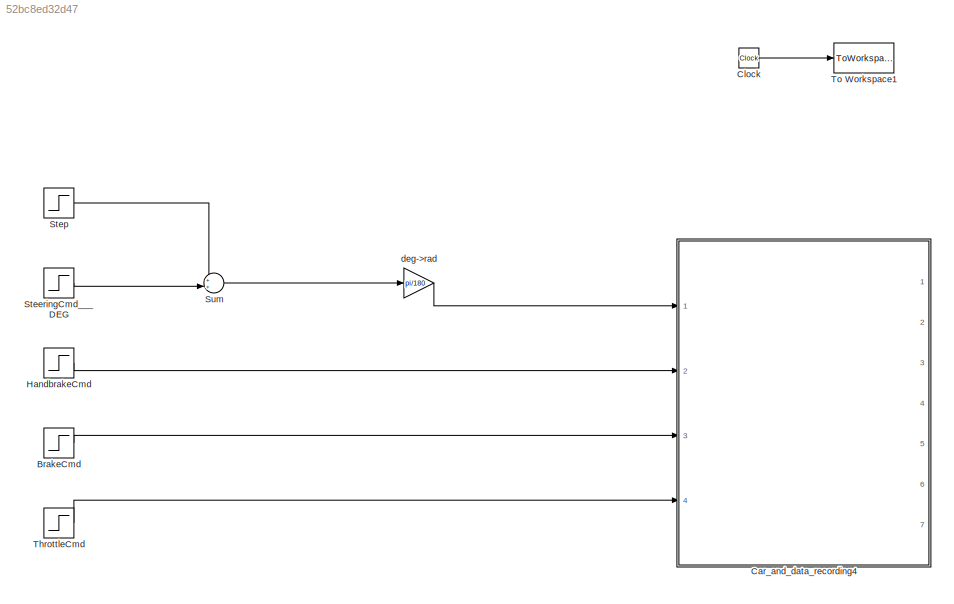
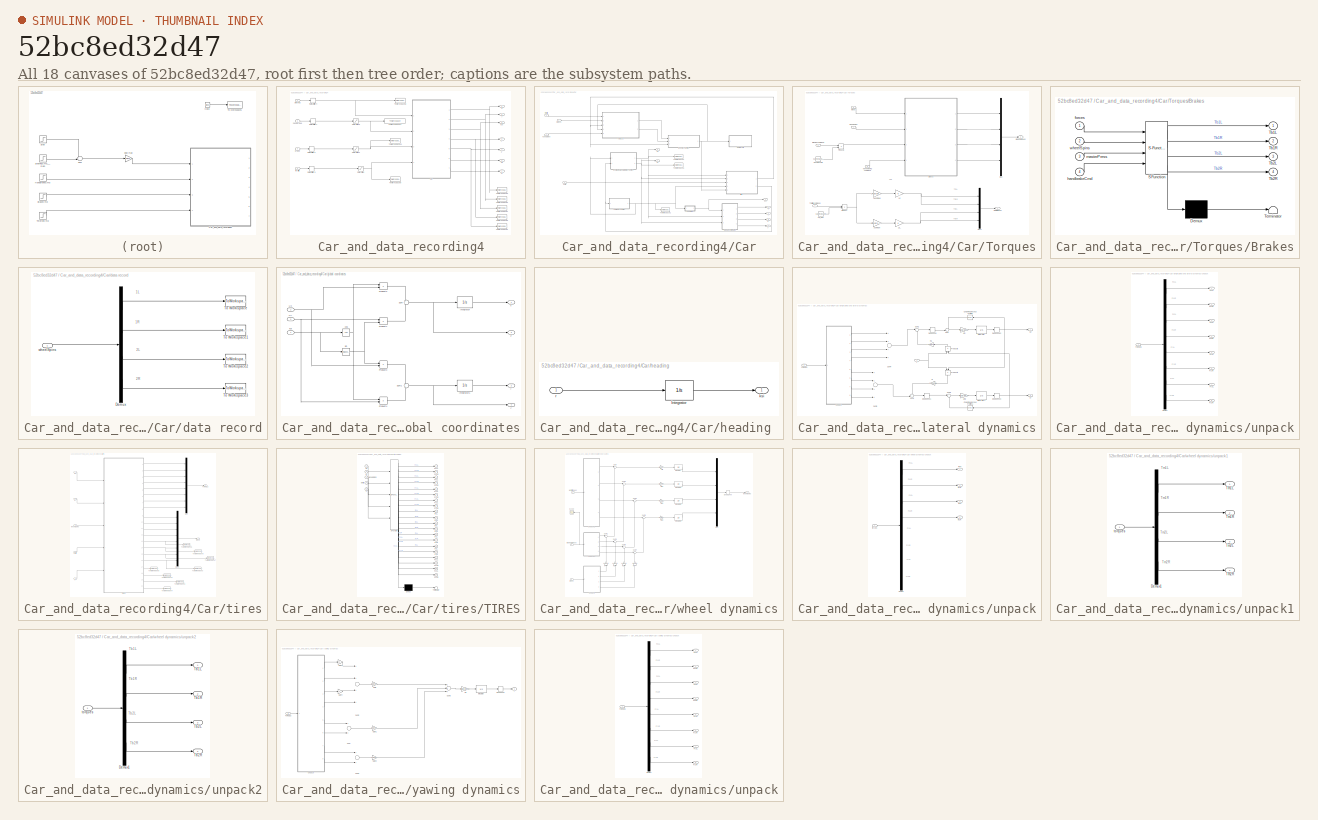
[diagram: thumbnail index - all 18 canvases of the model, root first then tree order]
MODEL slx_52bc8ed32d47
KIND model
CONFIG AbsTol = auto
CONFIG EnableMultiTasking = on
CONFIG FixedStep = 0.001
CONFIG MaxStep = auto
CONFIG MinStep = auto
CONFIG RelTol = 1e-3
CONFIG SampleTimeConstraint = Unconstrained
CONFIG Solver = ode4
CONFIG SolverName = ode4
CONFIG StartTime = 0.0
CONFIG StopTime = 10
BLOCK [Step] BrakeCmd
  After = 0.2
  SampleTime = 0
  Time = 2
BLOCK [SubSystem] Car_and_data_recording4
  Ports = [4, 7]
  RequestExecContextInheritance = off
  Variant = off
BLOCK [SubSystem] Car_and_data_recording4/Car
  Ports = [4, 7]
  RequestExecContextInheritance = off
  Variant = off
BLOCK [ToWorkspace] Car_and_data_recording4/Car/To Workspace1
  FixptAsFi = on
  MaxDataPoints = inf
  Ports = [1]
  SampleTime = -1
  Save2DSignal = 3-D array (concatenate along third dimension)
  VariableName = Ux
BLOCK [ToWorkspace] Car_and_data_recording4/Car/To Workspace2
  FixptAsFi = on
  MaxDataPoints = inf
  Ports = [1]
  SampleTime = -1
  Save2DSignal = 3-D array (concatenate along third dimension)
  VariableName = r
BLOCK [ToWorkspace] Car_and_data_recording4/Car/To Workspace5
  FixptAsFi = on
  MaxDataPoints = inf
  Ports = [1]
  SampleTime = -1
  Save2DSignal = 3-D array (concatenate along third dimension)
  VariableName = Uy
BLOCK [SubSystem] Car_and_data_recording4/Car/Torques
  Ports = [5, 2]
  RequestExecContextInheritance = off
  Variant = off
BLOCK [Gain] Car_and_data_recording4/Car/Torques/1-gammaM
  Gain = 1-params.gammaM
  OutDataTypeStr = Inherit: Inherit via internal rule
  ParamDataTypeStr = Inherit: Inherit via internal rule
  SaturateOnIntegerOverflow = off
BLOCK [Gain] Car_and_data_recording4/Car/Torques/1//2
  OutDataTypeStr = Inherit: Inherit via internal rule
  ParamDataTypeStr = Inherit: Inherit via internal rule
  SaturateOnIntegerOverflow = off
BLOCK [Gain] Car_and_data_recording4/Car/Torques/1//2_
  OutDataTypeStr = Inherit: Inherit via internal rule
  ParamDataTypeStr = Inherit: Inherit via internal rule
  SaturateOnIntegerOverflow = off
BLOCK [SubSystem] Car_and_data_recording4/Car/Torques/Brakes
  ErrorFcn = Stateflow.Translate.translate
  PermitHierarchicalResolution = ExplicitOnly
  Ports = [4, 4]
  RequestExecContextInheritance = off
  SFBlockType = MATLAB Function
  TreatAsAtomicUnit = on
  Variant = off
BLOCK [Demux] Car_and_data_recording4/Car/Torques/Brakes/ Demux 
  Outputs = 1
  Ports = [1, 1]
BLOCK [S-Function] Car_and_data_recording4/Car/Torques/Brakes/ SFunction 
  EnableBusSupport = on
  FunctionName = sf_sfun
  Parameters = params
  PortCounts = [4 5]
  Ports = [4, 5]
  SFcnIsStateOwnerBlock = off
  SFunctionDeploymentMode = off
  Tag = Stateflow S-Function model 6
BLOCK [Terminator] Car_and_data_recording4/Car/Torques/Brakes/ Terminator 
BLOCK [Outport] Car_and_data_recording4/Car/Torques/Brakes/Tb1L
  IconDisplay = Port number
BLOCK [Outport] Car_and_data_recording4/Car/Torques/Brakes/Tb1R
  IconDisplay = Port number
  Port = 2
BLOCK [Outport] Car_and_data_recording4/Car/Torques/Brakes/Tb2L
  IconDisplay = Port number
  Port = 3
BLOCK [Outport] Car_and_data_recording4/Car/Torques/Brakes/Tb2R
  IconDisplay = Port number
  Port = 4
BLOCK [Inport] Car_and_data_recording4/Car/Torques/Brakes/forces
  IconDisplay = Port number
BLOCK [Inport] Car_and_data_recording4/Car/Torques/Brakes/handbrakeCmd
  IconDisplay = Port number
  Port = 4
BLOCK [Inport] Car_and_data_recording4/Car/Torques/Brakes/masterPress
  IconDisplay = Port number
  Port = 3
BLOCK [Inport] Car_and_data_recording4/Car/Torques/Brakes/wheelSpins
  IconDisplay = Port number
  Port = 2
BLOCK [Inport] Car_and_data_recording4/Car/Torques/Braking command
  IconDisplay = Port number
  Port = 2
BLOCK [Outport] Car_and_data_recording4/Car/Torques/Braking torques
  IconDisplay = Port number
  Port = 2
BLOCK [Inport] Car_and_data_recording4/Car/Torques/Handbraking command
  IconDisplay = Port number
  Port = 5
BLOCK [Constant] Car_and_data_recording4/Car/Torques/MAx Pressure
  Value = params.maxPress
BLOCK [Outport] Car_and_data_recording4/Car/Torques/Motor torques
  IconDisplay = Port number
BLOCK [Mux] Car_and_data_recording4/Car/Torques/Mux
  DisplayOption = bar
  Ports = [4, 1]
BLOCK [Mux] Car_and_data_recording4/Car/Torques/Mux1
  DisplayOption = bar
  Ports = [4, 1]
BLOCK [Product] Car_and_data_recording4/Car/Torques/Product
  InputSameDT = off
  OutDataTypeStr = Inherit: Inherit via internal rule
  Ports = [2, 1]
  RndMeth = Floor
  SaturateOnIntegerOverflow = off
BLOCK [Product] Car_and_data_recording4/Car/Torques/Product1
  InputSameDT = off
  OutDataTypeStr = Inherit: Inherit via internal rule
  Ports = [2, 1]
  RndMeth = Floor
  SaturateOnIntegerOverflow = off
BLOCK [Inport] Car_and_data_recording4/Car/Torques/Throttle command
  IconDisplay = Port number
BLOCK [Constant] Car_and_data_recording4/Car/Torques/Tm_max
  Value = params.maxTm
BLOCK [Inport] Car_and_data_recording4/Car/Torques/forces
  IconDisplay = Port number
  Port = 3
BLOCK [Gain] Car_and_data_recording4/Car/Torques/gammaM
  Gain = params.gammaM
  OutDataTypeStr = Inherit: Inherit via internal rule
  ParamDataTypeStr = Inherit: Inherit via internal rule
  SaturateOnIntegerOverflow = off
BLOCK [Inport] Car_and_data_recording4/Car/Torques/wheel spins
  IconDisplay = Port number
  Port = 4
BLOCK [Outport] Car_and_data_recording4/Car/Ux
  IconDisplay = Port number
  Port = 6
BLOCK [Outport] Car_and_data_recording4/Car/Uy
  IconDisplay = Port number
  Port = 7
BLOCK [Inport] Car_and_data_recording4/Car/brakes
  IconDisplay = Port number
  Port = 3
BLOCK [SubSystem] Car_and_data_recording4/Car/data record
  Ports = [1]
  RequestExecContextInheritance = off
  Variant = off
BLOCK [Demux] Car_and_data_recording4/Car/data record/Demux
  DisplayOption = bar
  Ports = [1, 4]
BLOCK [ToWorkspace] Car_and_data_recording4/Car/data record/To Workspace
  FixptAsFi = on
  MaxDataPoints = inf
  Ports = [1]
  SampleTime = -1
  Save2DSignal = 3-D array (concatenate along third dimension)
  VariableName = w1L
BLOCK [ToWorkspace] Car_and_data_recording4/Car/data record/To Workspace1
  FixptAsFi = on
  MaxDataPoints = inf
  Ports = [1]
  SampleTime = -1
  Save2DSignal = 3-D array (concatenate along third dimension)
  VariableName = w1R
BLOCK [ToWorkspace] Car_and_data_recording4/Car/data record/To Workspace2
  FixptAsFi = on
  MaxDataPoints = inf
  Ports = [1]
  SampleTime = -1
  Save2DSignal = 3-D array (concatenate along third dimension)
  VariableName = w2L
BLOCK [ToWorkspace] Car_and_data_recording4/Car/data record/To Workspace3
  FixptAsFi = on
  MaxDataPoints = inf
  Ports = [1]
  SampleTime = -1
  Save2DSignal = 3-D array (concatenate along third dimension)
  VariableName = w2R
BLOCK [Inport] Car_and_data_recording4/Car/data record/wheelSpins
  IconDisplay = Port number
BLOCK [Inport] Car_and_data_recording4/Car/delta
  IconDisplay = Port number
BLOCK [SubSystem] Car_and_data_recording4/Car/global coordinates
  Ports = [3, 4]
  RequestExecContextInheritance = off
  Variant = off
BLOCK [Integrator] Car_and_data_recording4/Car/global coordinates/Integrator
  InitialCondition = params.x0
  Ports = [1, 1]
BLOCK [Integrator] Car_and_data_recording4/Car/global coordinates/Integrator1
  InitialCondition = params.y0
  Ports = [1, 1]
BLOCK [Product] Car_and_data_recording4/Car/global coordinates/Product1
  InputSameDT = off
  OutDataTypeStr = Inherit: Inherit via internal rule
  Ports = [2, 1]
  RndMeth = Floor
  SaturateOnIntegerOverflow = off
BLOCK [Product] Car_and_data_recording4/Car/global coordinates/Product2
  InputSameDT = off
  OutDataTypeStr = Inherit: Inherit via internal rule
  Ports = [2, 1]
  RndMeth = Floor
  SaturateOnIntegerOverflow = off
BLOCK [Product] Car_and_data_recording4/Car/global coordinates/Product3
  InputSameDT = off
  OutDataTypeStr = Inherit: Inherit via internal rule
  Ports = [2, 1]
  RndMeth = Floor
  SaturateOnIntegerOverflow = off
BLOCK [Product] Car_and_data_recording4/Car/global coordinates/Product4
  InputSameDT = off
  OutDataTypeStr = Inherit: Inherit via internal rule
  Ports = [2, 1]
  RndMeth = Floor
  SaturateOnIntegerOverflow = off
BLOCK [Sum] Car_and_data_recording4/Car/global coordinates/Sum
  IconShape = round
  InputSameDT = off
  Inputs = +|-
  OutDataTypeStr = Inherit: Inherit via internal rule
  Ports = [2, 1]
  SaturateOnIntegerOverflow = off
BLOCK [Sum] Car_and_data_recording4/Car/global coordinates/Sum1
  IconShape = round
  InputSameDT = off
  Inputs = +|+
  OutDataTypeStr = Inherit: Inherit via internal rule
  Ports = [2, 1]
  SaturateOnIntegerOverflow = off
BLOCK [Inport] Car_and_data_recording4/Car/global coordinates/Ux
  IconDisplay = Port number
  Port = 2
BLOCK [Inport] Car_and_data_recording4/Car/global coordinates/Uy
  IconDisplay = Port number
  Port = 3
BLOCK [Trigonometry] Car_and_data_recording4/Car/global coordinates/cos
  Operator = cos
  Ports = [1, 1]
BLOCK [Inport] Car_and_data_recording4/Car/global coordinates/ksi
  IconDisplay = Port number
BLOCK [Trigonometry] Car_and_data_recording4/Car/global coordinates/sin
  Ports = [1, 1]
BLOCK [Outport] Car_and_data_recording4/Car/global coordinates/x
  IconDisplay = Port number
BLOCK [Outport] Car_and_data_recording4/Car/global coordinates/x'
  IconDisplay = Port number
  Port = 3
BLOCK [Outport] Car_and_data_recording4/Car/global coordinates/y
  IconDisplay = Port number
  Port = 2
BLOCK [Outport] Car_and_data_recording4/Car/global coordinates/y'
  IconDisplay = Port number
  Port = 4
BLOCK [Inport] Car_and_data_recording4/Car/handbrake
  IconDisplay = Port number
  Port = 2
BLOCK [SubSystem] Car_and_data_recording4/Car/heading 
  Ports = [1, 1]
  RequestExecContextInheritance = off
  Variant = off
BLOCK [Integrator] Car_and_data_recording4/Car/heading /Integrator
  InitialCondition = params.ksi0
  Ports = [1, 1]
BLOCK [Outport] Car_and_data_recording4/Car/heading /ksi
  IconDisplay = Port number
BLOCK [Inport] Car_and_data_recording4/Car/heading /r
  IconDisplay = Port number
BLOCK [Outport] Car_and_data_recording4/Car/ksi
  IconDisplay = Port number
  Port = 3
BLOCK [SubSystem] Car_and_data_recording4/Car/longitudinal and lateral dynamics
  Ports = [2, 2]
  RequestExecContextInheritance = off
  Variant = off
BLOCK [Gain] Car_and_data_recording4/Car/longitudinal and lateral dynamics/1//m
  Gain = 1/params.m
  OutDataTypeStr = Inherit: Inherit via internal rule
  ParamDataTypeStr = Inherit: Inherit via internal rule
  SaturateOnIntegerOverflow = off
BLOCK [Gain] Car_and_data_recording4/Car/longitudinal and lateral dynamics/1//m2
  Gain = 1/params.m
  OutDataTypeStr = Inherit: Inherit via internal rule
  ParamDataTypeStr = Inherit: Inherit via internal rule
  SaturateOnIntegerOverflow = off
BLOCK [Reference] Car_and_data_recording4/Car/longitudinal and lateral dynamics/Coulomb & Viscous Friction  REF=simulink/Discontinuities/Coulomb &
Viscous Friction
  Ports = [1, 1]
  SourceBlock = simulink/Discontinuities/Coulomb &\nViscous Friction
  SourceType = Coulombic and Viscous Friction
BLOCK [Reference] Car_and_data_recording4/Car/longitudinal and lateral dynamics/Coulomb & Viscous Friction1  REF=simulink/Discontinuities/Coulomb &
Viscous Friction
  Ports = [1, 1]
  SourceBlock = simulink/Discontinuities/Coulomb &\nViscous Friction
  SourceType = Coulombic and Viscous Friction
BLOCK [DeadZone] Car_and_data_recording4/Car/longitudinal and lateral dynamics/Dead Zone
  LowerValue = -params.m*params.g*params.muRoll
  UpperValue = params.m*params.g*params.muRoll
BLOCK [DeadZone] Car_and_data_recording4/Car/longitudinal and lateral dynamics/Dead Zone1
  LowerValue = -params.m*params.g*params.muRoll
  UpperValue = params.m*params.g*params.muRoll
BLOCK [DeadZone] Car_and_data_recording4/Car/longitudinal and lateral dynamics/Dead Zone2
  LowerValue = -params.Dz1
  UpperValue = params.Dz1
BLOCK [DeadZone] Car_and_data_recording4/Car/longitudinal and lateral dynamics/Dead Zone3
  LowerValue = -params.Dz1
  UpperValue = params.Dz1
BLOCK [Inport] Car_and_data_recording4/Car/longitudinal and lateral dynamics/FORCES
  IconDisplay = Port number
  Port = 2
BLOCK [Integrator] Car_and_data_recording4/Car/longitudinal and lateral dynamics/Integrator
  InitialCondition = params.Ux0
  Ports = [1, 1]
BLOCK [Integrator] Car_and_data_recording4/Car/longitudinal and lateral dynamics/Integrator1
  InitialCondition = params.Uy0
  Ports = [1, 1]
BLOCK [Product] Car_and_data_recording4/Car/longitudinal and lateral dynamics/Product4
  InputSameDT = off
  OutDataTypeStr = Inherit: Inherit via internal rule
  Ports = [2, 1]
  RndMeth = Floor
  SaturateOnIntegerOverflow = off
BLOCK [Product] Car_and_data_recording4/Car/longitudinal and lateral dynamics/Product5
  InputSameDT = off
  OutDataTypeStr = Inherit: Inherit via internal rule
  Ports = [2, 1]
  RndMeth = Floor
  SaturateOnIntegerOverflow = off
BLOCK [Sum] Car_and_data_recording4/Car/longitudinal and lateral dynamics/Sum
  IconShape = round
  InputSameDT = off
  Inputs = -+|
  OutDataTypeStr = Inherit: Inherit via internal rule
  Ports = [2, 1]
  SaturateOnIntegerOverflow = off
BLOCK [Sum] Car_and_data_recording4/Car/longitudinal and lateral dynamics/Sum1
  IconShape = round
  InputSameDT = off
  Inputs = |++
  OutDataTypeStr = Inherit: Inherit via internal rule
  Ports = [2, 1]
  SaturateOnIntegerOverflow = off
BLOCK [Sum] Car_and_data_recording4/Car/longitudinal and lateral dynamics/Sum2
  IconShape = round
  InputSameDT = off
  Inputs = |+-
  OutDataTypeStr = Inherit: Inherit via internal rule
  Ports = [2, 1]
  SaturateOnIntegerOverflow = off
BLOCK [Sum] Car_and_data_recording4/Car/longitudinal and lateral dynamics/Sum3
  IconShape = round
  InputSameDT = off
  Inputs = -+|
  OutDataTypeStr = Inherit: Inherit via internal rule
  Ports = [2, 1]
  SaturateOnIntegerOverflow = off
BLOCK [Sum] Car_and_data_recording4/Car/longitudinal and lateral dynamics/Sum4
  InputSameDT = off
  Inputs = ++++
  OutDataTypeStr = Inherit: Inherit via internal rule
  Ports = [4, 1]
  SaturateOnIntegerOverflow = off
BLOCK [Sum] Car_and_data_recording4/Car/longitudinal and lateral dynamics/Sum5
  InputSameDT = off
  Inputs = ++++
  OutDataTypeStr = Inherit: Inherit via internal rule
  Ports = [4, 1]
  SaturateOnIntegerOverflow = off
BLOCK [Outport] Car_and_data_recording4/Car/longitudinal and lateral dynamics/Ux
  IconDisplay = Port number
BLOCK [Outport] Car_and_data_recording4/Car/longitudinal and lateral dynamics/Uy
  IconDisplay = Port number
  Port = 2
BLOCK [Gain] Car_and_data_recording4/Car/longitudinal and lateral dynamics/m
  Gain = params.m
  OutDataTypeStr = Inherit: Inherit via internal rule
  ParamDataTypeStr = Inherit: Inherit via internal rule
  SaturateOnIntegerOverflow = off
BLOCK [Gain] Car_and_data_recording4/Car/longitudinal and lateral dynamics/m1
  Gain = params.m
  OutDataTypeStr = Inherit: Inherit via internal rule
  ParamDataTypeStr = Inherit: Inherit via internal rule
  SaturateOnIntegerOverflow = off
BLOCK [Inport] Car_and_data_recording4/Car/longitudinal and lateral dynamics/r
  IconDisplay = Port number
BLOCK [SubSystem] Car_and_data_recording4/Car/longitudinal and lateral dynamics/unpack
  Ports = [1, 8]
  RequestExecContextInheritance = off
  Variant = off
BLOCK [Demux] Car_and_data_recording4/Car/longitudinal and lateral dynamics/unpack/Demux
  DisplayOption = bar
  Outputs = 8
  Ports = [1, 8]
BLOCK [Inport] Car_and_data_recording4/Car/longitudinal and lateral dynamics/unpack/FORCES
  IconDisplay = Port number
BLOCK [Outport] Car_and_data_recording4/Car/longitudinal and lateral dynamics/unpack/Fx1L
  IconDisplay = Port number
BLOCK [Outport] Car_and_data_recording4/Car/longitudinal and lateral dynamics/unpack/Fx1R
  IconDisplay = Port number
  Port = 2
BLOCK [Outport] Car_and_data_recording4/Car/longitudinal and lateral dynamics/unpack/Fx2L
  IconDisplay = Port number
  Port = 3
BLOCK [Outport] Car_and_data_recording4/Car/longitudinal and lateral dynamics/unpack/Fx2R
  IconDisplay = Port number
  Port = 4
BLOCK [Outport] Car_and_data_recording4/Car/longitudinal and lateral dynamics/unpack/Fy1L
  IconDisplay = Port number
  Port = 5
BLOCK [Outport] Car_and_data_recording4/Car/longitudinal and lateral dynamics/unpack/Fy1R
  IconDisplay = Port number
  Port = 6
BLOCK [Outport] Car_and_data_recording4/Car/longitudinal and lateral dynamics/unpack/Fy2L
  IconDisplay = Port number
  Port = 7
BLOCK [Outport] Car_and_data_recording4/Car/longitudinal and lateral dynamics/unpack/Fy2R
  IconDisplay = Port number
  Port = 8
BLOCK [Inport] Car_and_data_recording4/Car/throttle
  IconDisplay = Port number
  Port = 4
BLOCK [SubSystem] Car_and_data_recording4/Car/tires
  Ports = [5, 2]
  RequestExecContextInheritance = off
  Variant = off
BLOCK [Outport] Car_and_data_recording4/Car/tires/FORCES
  IconDisplay = Port number
  Port = 2
BLOCK [Mux] Car_and_data_recording4/Car/tires/Mux
  DisplayOption = bar
  Inputs = 8
  Ports = [8, 1]
BLOCK [Mux] Car_and_data_recording4/Car/tires/Mux1
  DisplayOption = bar
  Inputs = 8
  Ports = [8, 1]
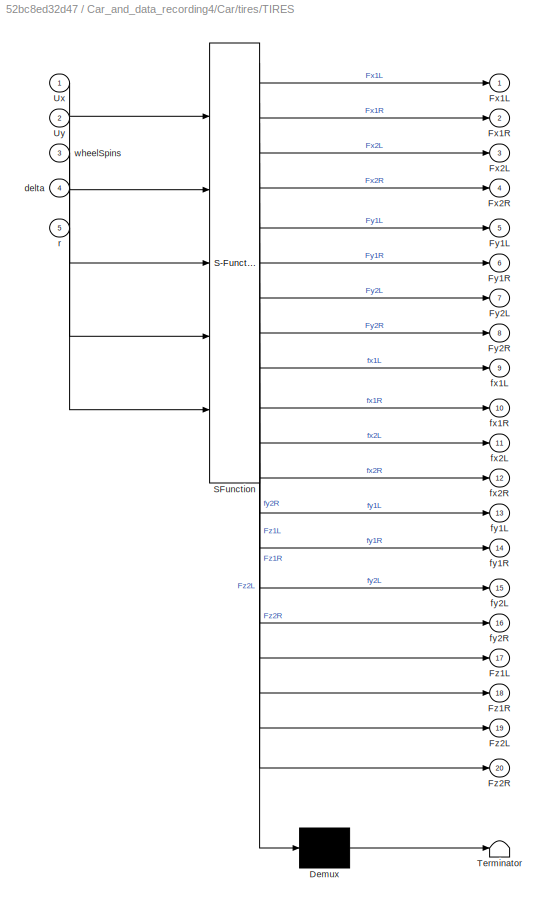
BLOCK [SubSystem] Car_and_data_recording4/Car/tires/TIRES
  ErrorFcn = Stateflow.Translate.translate
  PermitHierarchicalResolution = ExplicitOnly
  Ports = [5, 20]
  RequestExecContextInheritance = off
  SFBlockType = MATLAB Function
  TreatAsAtomicUnit = on
  Variant = off
BLOCK [Demux] Car_and_data_recording4/Car/tires/TIRES/ Demux 
  Outputs = 1
  Ports = [1, 1]
BLOCK [S-Function] Car_and_data_recording4/Car/tires/TIRES/ SFunction 
  EnableBusSupport = on
  FunctionName = sf_sfun
  Parameters = params
  PortCounts = [5 21]
  Ports = [5, 21]
  SFcnIsStateOwnerBlock = off
  SFunctionDeploymentMode = off
  Tag = Stateflow S-Function model 7
BLOCK [Terminator] Car_and_data_recording4/Car/tires/TIRES/ Terminator 
BLOCK [Outport] Car_and_data_recording4/Car/tires/TIRES/Fx1L
  IconDisplay = Port number
BLOCK [Outport] Car_and_data_recording4/Car/tires/TIRES/Fx1R
  IconDisplay = Port number
  Port = 2
BLOCK [Outport] Car_and_data_recording4/Car/tires/TIRES/Fx2L
  IconDisplay = Port number
  Port = 3
BLOCK [Outport] Car_and_data_recording4/Car/tires/TIRES/Fx2R
  IconDisplay = Port number
  Port = 4
BLOCK [Outport] Car_and_data_recording4/Car/tires/TIRES/Fy1L
  IconDisplay = Port number
  Port = 5
BLOCK [Outport] Car_and_data_recording4/Car/tires/TIRES/Fy1R
  IconDisplay = Port number
  Port = 6
BLOCK [Outport] Car_and_data_recording4/Car/tires/TIRES/Fy2L
  IconDisplay = Port number
  Port = 7
BLOCK [Outport] Car_and_data_recording4/Car/tires/TIRES/Fy2R
  IconDisplay = Port number
  Port = 8
BLOCK [Outport] Car_and_data_recording4/Car/tires/TIRES/Fz1L
  IconDisplay = Port number
  Port = 17
BLOCK [Outport] Car_and_data_recording4/Car/tires/TIRES/Fz1R
  IconDisplay = Port number
  Port = 18
BLOCK [Outport] Car_and_data_recording4/Car/tires/TIRES/Fz2L
  IconDisplay = Port number
  Port = 19
BLOCK [Outport] Car_and_data_recording4/Car/tires/TIRES/Fz2R
  IconDisplay = Port number
  Port = 20
BLOCK [Inport] Car_and_data_recording4/Car/tires/TIRES/Ux
  IconDisplay = Port number
BLOCK [Inport] Car_and_data_recording4/Car/tires/TIRES/Uy
  IconDisplay = Port number
  Port = 2
BLOCK [Inport] Car_and_data_recording4/Car/tires/TIRES/delta
  IconDisplay = Port number
  Port = 4
BLOCK [Outport] Car_and_data_recording4/Car/tires/TIRES/fx1L
  IconDisplay = Port number
  Port = 9
BLOCK [Outport] Car_and_data_recording4/Car/tires/TIRES/fx1R
  IconDisplay = Port number
  Port = 10
BLOCK [Outport] Car_and_data_recording4/Car/tires/TIRES/fx2L
  IconDisplay = Port number
  Port = 11
BLOCK [Outport] Car_and_data_recording4/Car/tires/TIRES/fx2R
  IconDisplay = Port number
  Port = 12
BLOCK [Outport] Car_and_data_recording4/Car/tires/TIRES/fy1L
  IconDisplay = Port number
  Port = 13
BLOCK [Outport] Car_and_data_recording4/Car/tires/TIRES/fy1R
  IconDisplay = Port number
  Port = 14
BLOCK [Outport] Car_and_data_recording4/Car/tires/TIRES/fy2L
  IconDisplay = Port number
  Port = 15
BLOCK [Outport] Car_and_data_recording4/Car/tires/TIRES/fy2R
  IconDisplay = Port number
  Port = 16
BLOCK [Inport] Car_and_data_recording4/Car/tires/TIRES/r
  IconDisplay = Port number
  Port = 5
BLOCK [Inport] Car_and_data_recording4/Car/tires/TIRES/wheelSpins
  IconDisplay = Port number
  Port = 3
BLOCK [ToWorkspace] Car_and_data_recording4/Car/tires/To Workspace2
  FixptAsFi = on
  MaxDataPoints = inf
  Ports = [1]
  SampleTime = -1
  Save2DSignal = 3-D array (concatenate along third dimension)
  VariableName = Fz1R
BLOCK [ToWorkspace] Car_and_data_recording4/Car/tires/To Workspace3
  FixptAsFi = on
  MaxDataPoints = inf
  Ports = [1]
  SampleTime = -1
  Save2DSignal = 3-D array (concatenate along third dimension)
  VariableName = Fz2L
BLOCK [ToWorkspace] Car_and_data_recording4/Car/tires/To Workspace4
  FixptAsFi = on
  MaxDataPoints = inf
  Ports = [1]
  SampleTime = -1
  Save2DSignal = 3-D array (concatenate along third dimension)
  VariableName = Fz2R
BLOCK [ToWorkspace] Car_and_data_recording4/Car/tires/To Workspace5
  FixptAsFi = on
  MaxDataPoints = inf
  Ports = [1]
  SampleTime = -1
  Save2DSignal = 3-D array (concatenate along third dimension)
  VariableName = fy1L
BLOCK [ToWorkspace] Car_and_data_recording4/Car/tires/To Workspace6
  FixptAsFi = on
  MaxDataPoints = inf
  Ports = [1]
  SampleTime = -1
  Save2DSignal = 3-D array (concatenate along third dimension)
  VariableName = fy1R
BLOCK [ToWorkspace] Car_and_data_recording4/Car/tires/To Workspace7
  FixptAsFi = on
  MaxDataPoints = inf
  Ports = [1]
  SampleTime = -1
  Save2DSignal = 3-D array (concatenate along third dimension)
  VariableName = fy2L
BLOCK [ToWorkspace] Car_and_data_recording4/Car/tires/To Workspace8
  FixptAsFi = on
  MaxDataPoints = inf
  Ports = [1]
  SampleTime = -1
  Save2DSignal = 3-D array (concatenate along third dimension)
  VariableName = Fz1L
BLOCK [ToWorkspace] Car_and_data_recording4/Car/tires/To Workspace9
  FixptAsFi = on
  MaxDataPoints = inf
  Ports = [1]
  SampleTime = -1
  Save2DSignal = 3-D array (concatenate along third dimension)
  VariableName = fy2R
BLOCK [Inport] Car_and_data_recording4/Car/tires/Ux
  IconDisplay = Port number
BLOCK [Inport] Car_and_data_recording4/Car/tires/Uy
  IconDisplay = Port number
  Port = 2
BLOCK [Inport] Car_and_data_recording4/Car/tires/delta
  IconDisplay = Port number
  Port = 3
BLOCK [Outport] Car_and_data_recording4/Car/tires/forces
  IconDisplay = Port number
BLOCK [Inport] Car_and_data_recording4/Car/tires/r
  IconDisplay = Port number
  Port = 4
BLOCK [Inport] Car_and_data_recording4/Car/tires/wheelSpins
  IconDisplay = Port number
  Port = 5
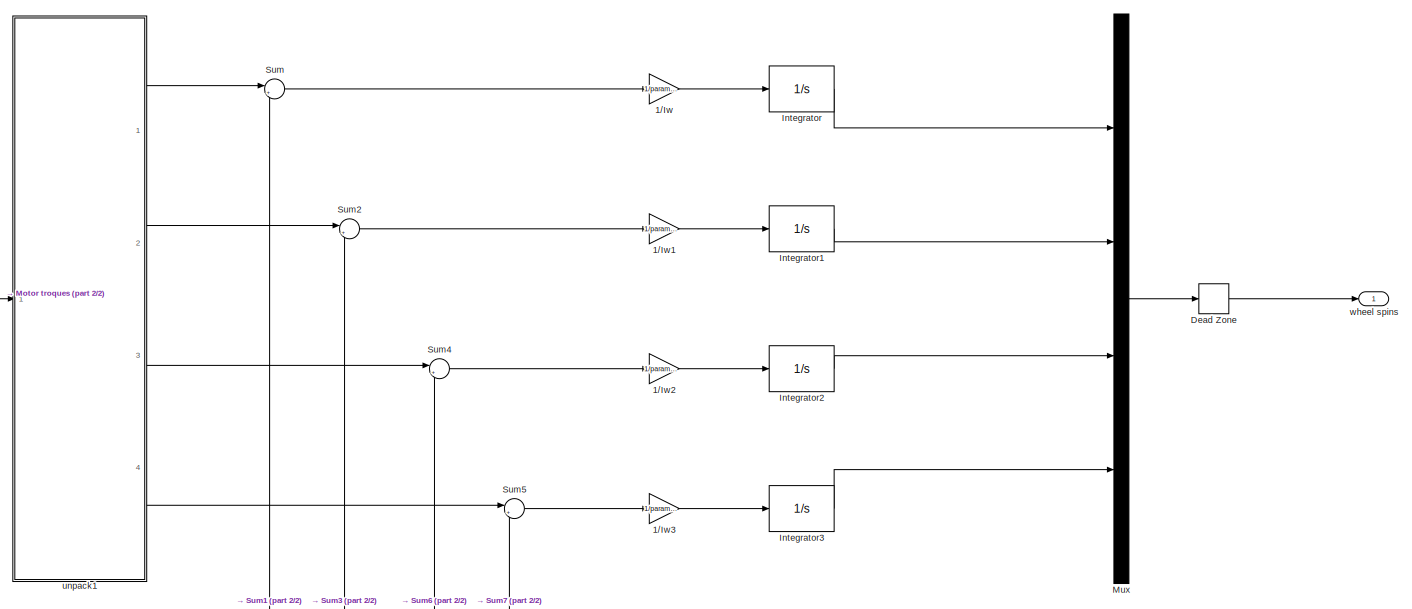
[diagram: Car_and_data_recording4/Car/wheel dynamics - part 1/2, full width, top band]
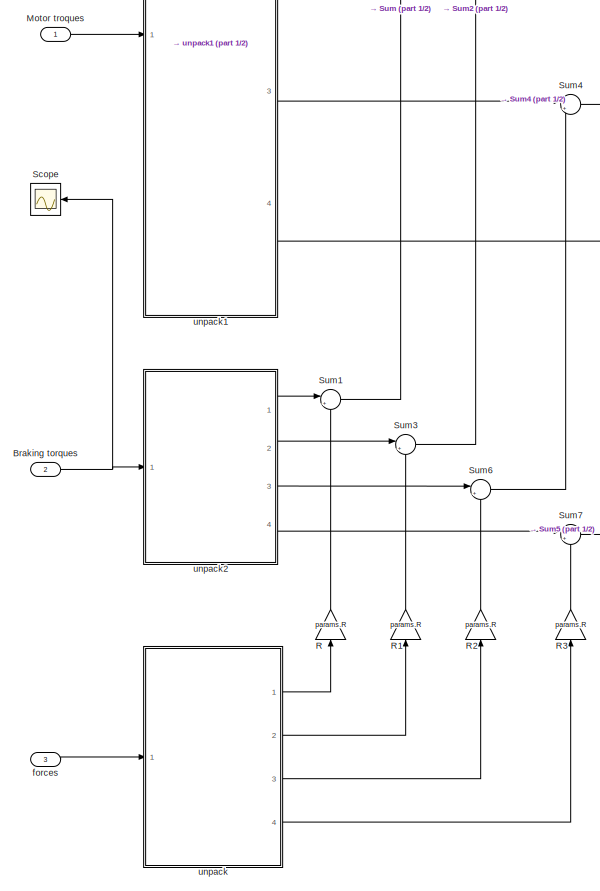
[diagram: Car_and_data_recording4/Car/wheel dynamics - part 2/2, left side, full height]
BLOCK [SubSystem] Car_and_data_recording4/Car/wheel dynamics
  Ports = [3, 1]
  RequestExecContextInheritance = off
  Variant = off
BLOCK [Gain] Car_and_data_recording4/Car/wheel dynamics/1//Iw
  Gain = 1/params.Iw
  OutDataTypeStr = Inherit: Inherit via internal rule
  ParamDataTypeStr = Inherit: Inherit via internal rule
  SaturateOnIntegerOverflow = off
BLOCK [Gain] Car_and_data_recording4/Car/wheel dynamics/1//Iw1
  Gain = 1/params.Iw
  OutDataTypeStr = Inherit: Inherit via internal rule
  ParamDataTypeStr = Inherit: Inherit via internal rule
  SaturateOnIntegerOverflow = off
BLOCK [Gain] Car_and_data_recording4/Car/wheel dynamics/1//Iw2
  Gain = 1/params.Iw
  OutDataTypeStr = Inherit: Inherit via internal rule
  ParamDataTypeStr = Inherit: Inherit via internal rule
  SaturateOnIntegerOverflow = off
BLOCK [Gain] Car_and_data_recording4/Car/wheel dynamics/1//Iw3
  Gain = 1/params.Iw
  OutDataTypeStr = Inherit: Inherit via internal rule
  ParamDataTypeStr = Inherit: Inherit via internal rule
  SaturateOnIntegerOverflow = off
BLOCK [Inport] Car_and_data_recording4/Car/wheel dynamics/Braking torques
  IconDisplay = Port number
  Port = 2
BLOCK [DeadZone] Car_and_data_recording4/Car/wheel dynamics/Dead Zone
  LowerValue = -params.Dz1/params.R
  UpperValue = params.Dz1/params.R
BLOCK [Integrator] Car_and_data_recording4/Car/wheel dynamics/Integrator
  InitialCondition = params.w1L0
  LimitOutput = on
  LowerSaturationLimit = 0
  Ports = [1, 1]
BLOCK [Integrator] Car_and_data_recording4/Car/wheel dynamics/Integrator1
  InitialCondition = params.w1R0
  LimitOutput = on
  LowerSaturationLimit = 0
  Ports = [1, 1]
BLOCK [Integrator] Car_and_data_recording4/Car/wheel dynamics/Integrator2
  InitialCondition = params.w2L0
  LimitOutput = on
  LowerSaturationLimit = 0
  Ports = [1, 1]
BLOCK [Integrator] Car_and_data_recording4/Car/wheel dynamics/Integrator3
  InitialCondition = params.w2R0
  LimitOutput = on
  LowerSaturationLimit = 0
  Ports = [1, 1]
BLOCK [Inport] Car_and_data_recording4/Car/wheel dynamics/Motor troques
  IconDisplay = Port number
BLOCK [Mux] Car_and_data_recording4/Car/wheel dynamics/Mux
  DisplayOption = bar
  Ports = [4, 1]
BLOCK [Gain] Car_and_data_recording4/Car/wheel dynamics/R
  Gain = params.R
  OutDataTypeStr = Inherit: Inherit via internal rule
  ParamDataTypeStr = Inherit: Inherit via internal rule
  SaturateOnIntegerOverflow = off
BLOCK [Gain] Car_and_data_recording4/Car/wheel dynamics/R1
  Gain = params.R
  OutDataTypeStr = Inherit: Inherit via internal rule
  ParamDataTypeStr = Inherit: Inherit via internal rule
  SaturateOnIntegerOverflow = off
BLOCK [Gain] Car_and_data_recording4/Car/wheel dynamics/R2
  Gain = params.R
  OutDataTypeStr = Inherit: Inherit via internal rule
  ParamDataTypeStr = Inherit: Inherit via internal rule
  SaturateOnIntegerOverflow = off
BLOCK [Gain] Car_and_data_recording4/Car/wheel dynamics/R3
  Gain = params.R
  OutDataTypeStr = Inherit: Inherit via internal rule
  ParamDataTypeStr = Inherit: Inherit via internal rule
  SaturateOnIntegerOverflow = off
BLOCK [Scope] Car_and_data_recording4/Car/wheel dynamics/Scope
  NumInputPorts = 1
  Ports = [1]
  ScopeSpecificationString = C++SS(StrPVP('Location','[5, 48, 1605, 859]'),StrPVP('Open','off'),MxPVP('AxesTitles',24,'struct(''axes1'',''%<SignalLabel>'')'),MxPVP('ScopeGraphics',28,'struct(''FigureColor'',''[0.5 0.5 0.5]'',''AxesColor'',''[0 0 0]'',''AxesTickColor'',''[1 1 1]'',''LineColors'',''[1 1 0;1 0 1;0 1 1;1 0 0;0 1 0;0 0 1]'',''LineStyles'',''-|-|-|-|-|-'',''LineWidths'',''[0.5 0.5 0.5 0.5 0.5 0.5]'',''MarkerStyles'...<+191ch>
BLOCK [Sum] Car_and_data_recording4/Car/wheel dynamics/Sum
  IconShape = round
  InputSameDT = off
  Inputs = |++
  OutDataTypeStr = Inherit: Inherit via internal rule
  Ports = [2, 1]
  SaturateOnIntegerOverflow = off
BLOCK [Sum] Car_and_data_recording4/Car/wheel dynamics/Sum1
  IconShape = round
  InputSameDT = off
  Inputs = |+-
  OutDataTypeStr = Inherit: Inherit via internal rule
  Ports = [2, 1]
  SaturateOnIntegerOverflow = off
BLOCK [Sum] Car_and_data_recording4/Car/wheel dynamics/Sum2
  IconShape = round
  InputSameDT = off
  Inputs = |++
  OutDataTypeStr = Inherit: Inherit via internal rule
  Ports = [2, 1]
  SaturateOnIntegerOverflow = off
BLOCK [Sum] Car_and_data_recording4/Car/wheel dynamics/Sum3
  IconShape = round
  InputSameDT = off
  Inputs = |+-
  OutDataTypeStr = Inherit: Inherit via internal rule
  Ports = [2, 1]
  SaturateOnIntegerOverflow = off
BLOCK [Sum] Car_and_data_recording4/Car/wheel dynamics/Sum4
  IconShape = round
  InputSameDT = off
  Inputs = |++
  OutDataTypeStr = Inherit: Inherit via internal rule
  Ports = [2, 1]
  SaturateOnIntegerOverflow = off
BLOCK [Sum] Car_and_data_recording4/Car/wheel dynamics/Sum5
  IconShape = round
  InputSameDT = off
  Inputs = |++
  OutDataTypeStr = Inherit: Inherit via internal rule
  Ports = [2, 1]
  SaturateOnIntegerOverflow = off
BLOCK [Sum] Car_and_data_recording4/Car/wheel dynamics/Sum6
  IconShape = round
  InputSameDT = off
  Inputs = |+-
  OutDataTypeStr = Inherit: Inherit via internal rule
  Ports = [2, 1]
  SaturateOnIntegerOverflow = off
BLOCK [Sum] Car_and_data_recording4/Car/wheel dynamics/Sum7
  IconShape = round
  InputSameDT = off
  Inputs = |+-
  OutDataTypeStr = Inherit: Inherit via internal rule
  Ports = [2, 1]
  SaturateOnIntegerOverflow = off
BLOCK [Inport] Car_and_data_recording4/Car/wheel dynamics/forces
  IconDisplay = Port number
  Port = 3
BLOCK [SubSystem] Car_and_data_recording4/Car/wheel dynamics/unpack
  Ports = [1, 4]
  RequestExecContextInheritance = off
  Variant = off
BLOCK [Demux] Car_and_data_recording4/Car/wheel dynamics/unpack/Demux
  DisplayOption = bar
  Outputs = 8
  Ports = [1, 8]
BLOCK [Inport] Car_and_data_recording4/Car/wheel dynamics/unpack/forces
  IconDisplay = Port number
BLOCK [Outport] Car_and_data_recording4/Car/wheel dynamics/unpack/fx1L
  IconDisplay = Port number
BLOCK [Outport] Car_and_data_recording4/Car/wheel dynamics/unpack/fx1R
  IconDisplay = Port number
  Port = 2
BLOCK [Outport] Car_and_data_recording4/Car/wheel dynamics/unpack/fx2L
  IconDisplay = Port number
  Port = 3
BLOCK [Outport] Car_and_data_recording4/Car/wheel dynamics/unpack/fx2R
  IconDisplay = Port number
  Port = 4
BLOCK [SubSystem] Car_and_data_recording4/Car/wheel dynamics/unpack1
  Ports = [1, 4]
  RequestExecContextInheritance = off
  Variant = off
BLOCK [Demux] Car_and_data_recording4/Car/wheel dynamics/unpack1/Demux1
  DisplayOption = bar
  Ports = [1, 4]
BLOCK [Outport] Car_and_data_recording4/Car/wheel dynamics/unpack1/Tm1L
  IconDisplay = Port number
BLOCK [Outport] Car_and_data_recording4/Car/wheel dynamics/unpack1/Tm1R
  IconDisplay = Port number
  Port = 2
BLOCK [Outport] Car_and_data_recording4/Car/wheel dynamics/unpack1/Tm2L
  IconDisplay = Port number
  Port = 3
BLOCK [Outport] Car_and_data_recording4/Car/wheel dynamics/unpack1/Tm2R
  IconDisplay = Port number
  Port = 4
BLOCK [Inport] Car_and_data_recording4/Car/wheel dynamics/unpack1/torques
  IconDisplay = Port number
BLOCK [SubSystem] Car_and_data_recording4/Car/wheel dynamics/unpack2
  Ports = [1, 4]
  RequestExecContextInheritance = off
  Variant = off
BLOCK [Demux] Car_and_data_recording4/Car/wheel dynamics/unpack2/Demux1
  DisplayOption = bar
  Ports = [1, 4]
BLOCK [Outport] Car_and_data_recording4/Car/wheel dynamics/unpack2/Tb1L
  IconDisplay = Port number
BLOCK [Outport] Car_and_data_recording4/Car/wheel dynamics/unpack2/Tb1R
  IconDisplay = Port number
  Port = 2
BLOCK [Outport] Car_and_data_recording4/Car/wheel dynamics/unpack2/Tb2L
  IconDisplay = Port number
  Port = 3
BLOCK [Outport] Car_and_data_recording4/Car/wheel dynamics/unpack2/Tb2R
  IconDisplay = Port number
  Port = 4
BLOCK [Inport] Car_and_data_recording4/Car/wheel dynamics/unpack2/torques
  IconDisplay = Port number
BLOCK [Outport] Car_and_data_recording4/Car/wheel dynamics/wheel spins
  IconDisplay = Port number
  PortDimensions = 4
  VarSizeSig = No
BLOCK [Outport] Car_and_data_recording4/Car/x
  IconDisplay = Port number
BLOCK [Outport] Car_and_data_recording4/Car/x'
  IconDisplay = Port number
  Port = 5
BLOCK [Outport] Car_and_data_recording4/Car/y
  IconDisplay = Port number
  Port = 2
BLOCK [Outport] Car_and_data_recording4/Car/y'
  IconDisplay = Port number
  Port = 4
BLOCK [SubSystem] Car_and_data_recording4/Car/yawing dynamics
  Ports = [1, 1]
  RequestExecContextInheritance = off
  Variant = off
BLOCK [Gain] Car_and_data_recording4/Car/yawing dynamics/1//Iz
  Gain = 1/params.Iz
  OutDataTypeStr = Inherit: Inherit via internal rule
  ParamDataTypeStr = Inherit: Inherit via internal rule
  SaturateOnIntegerOverflow = off
BLOCK [DeadZone] Car_and_data_recording4/Car/yawing dynamics/Dead Zone
  LowerValue = -params.Dz2
  UpperValue = params.Dz2
BLOCK [Inport] Car_and_data_recording4/Car/yawing dynamics/FORCES
  IconDisplay = Port number
BLOCK [Gain] Car_and_data_recording4/Car/yawing dynamics/Gain
  Gain = params.lw
  OutDataTypeStr = Inherit: Inherit via internal rule
  ParamDataTypeStr = Inherit: Inherit via internal rule
  SaturateOnIntegerOverflow = off
BLOCK [Gain] Car_and_data_recording4/Car/yawing dynamics/Gain1
  Gain = params.lF
  OutDataTypeStr = Inherit: Inherit via internal rule
  ParamDataTypeStr = Inherit: Inherit via internal rule
  SaturateOnIntegerOverflow = off
BLOCK [Gain] Car_and_data_recording4/Car/yawing dynamics/Gain2
  Gain = -params.lR
  OutDataTypeStr = Inherit: Inherit via internal rule
  ParamDataTypeStr = Inherit: Inherit via internal rule
  SaturateOnIntegerOverflow = off
BLOCK [Gain] Car_and_data_recording4/Car/yawing dynamics/Gain3
  Gain = -1
  OutDataTypeStr = Inherit: Inherit via internal rule
  ParamDataTypeStr = Inherit: Inherit via internal rule
  SaturateOnIntegerOverflow = off
BLOCK [Gain] Car_and_data_recording4/Car/yawing dynamics/Gain4
  Gain = -1
  OutDataTypeStr = Inherit: Inherit via internal rule
  ParamDataTypeStr = Inherit: Inherit via internal rule
  SaturateOnIntegerOverflow = off
BLOCK [Integrator] Car_and_data_recording4/Car/yawing dynamics/Integrator
  InitialCondition = params.r0
  Ports = [1, 1]
BLOCK [Sum] Car_and_data_recording4/Car/yawing dynamics/Sum
  InputSameDT = off
  OutDataTypeStr = Inherit: Inherit via internal rule
  Ports = [2, 1]
  SaturateOnIntegerOverflow = off
BLOCK [Sum] Car_and_data_recording4/Car/yawing dynamics/Sum2
  InputSameDT = off
  Inputs = ++++
  OutDataTypeStr = Inherit: Inherit via internal rule
  Ports = [4, 1]
  SaturateOnIntegerOverflow = off
BLOCK [Sum] Car_and_data_recording4/Car/yawing dynamics/Sum3
  InputSameDT = off
  Inputs = +++
  OutDataTypeStr = Inherit: Inherit via internal rule
  Ports = [3, 1]
  SaturateOnIntegerOverflow = off
BLOCK [Sum] Car_and_data_recording4/Car/yawing dynamics/Sum4
  InputSameDT = off
  OutDataTypeStr = Inherit: Inherit via internal rule
  Ports = [2, 1]
  SaturateOnIntegerOverflow = off
BLOCK [Outport] Car_and_data_recording4/Car/yawing dynamics/r
  IconDisplay = Port number
BLOCK [SubSystem] Car_and_data_recording4/Car/yawing dynamics/unpack
  Ports = [1, 8]
  RequestExecContextInheritance = off
  Variant = off
BLOCK [Demux] Car_and_data_recording4/Car/yawing dynamics/unpack/Demux
  DisplayOption = bar
  Outputs = 8
  Ports = [1, 8]
BLOCK [Inport] Car_and_data_recording4/Car/yawing dynamics/unpack/FORCES
  IconDisplay = Port number
BLOCK [Outport] Car_and_data_recording4/Car/yawing dynamics/unpack/Fx1L
  IconDisplay = Port number
BLOCK [Outport] Car_and_data_recording4/Car/yawing dynamics/unpack/Fx1R
  IconDisplay = Port number
  Port = 2
BLOCK [Outport] Car_and_data_recording4/Car/yawing dynamics/unpack/Fx2L
  IconDisplay = Port number
  Port = 3
BLOCK [Outport] Car_and_data_recording4/Car/yawing dynamics/unpack/Fx2R
  IconDisplay = Port number
  Port = 4
BLOCK [Outport] Car_and_data_recording4/Car/yawing dynamics/unpack/Fy1L
  IconDisplay = Port number
  Port = 5
BLOCK [Outport] Car_and_data_recording4/Car/yawing dynamics/unpack/Fy1R
  IconDisplay = Port number
  Port = 6
BLOCK [Outport] Car_and_data_recording4/Car/yawing dynamics/unpack/Fy2L
  IconDisplay = Port number
  Port = 7
BLOCK [Outport] Car_and_data_recording4/Car/yawing dynamics/unpack/Fy2R
  IconDisplay = Port number
  Port = 8
BLOCK [RateLimiter] Car_and_data_recording4/Rate Limiter1
  FallingSlewLimit = -5
  RisingSlewLimit = 5
  SampleTimeMode = inherited
BLOCK [RateLimiter] Car_and_data_recording4/Rate Limiter2
  FallingSlewLimit = -5
  RisingSlewLimit = 5
  SampleTimeMode = inherited
BLOCK [RateLimiter] Car_and_data_recording4/Rate Limiter3
  FallingSlewLimit = -5
  RisingSlewLimit = 5
  SampleTimeMode = inherited
BLOCK [RateLimiter] Car_and_data_recording4/Rate Limiter4
  FallingSlewLimit = -50*pi/180
  RisingSlewLimit = 50*pi/180
  SampleTimeMode = inherited
BLOCK [Saturate] Car_and_data_recording4/Saturation
  InputPortMap = u0
  LowerLimit = 0
  Ports = [1, 1]
  UpperLimit = 1
BLOCK [Saturate] Car_and_data_recording4/Saturation1
  InputPortMap = u0
  LowerLimit = 0
  Ports = [1, 1]
  UpperLimit = 1
BLOCK [Saturate] Car_and_data_recording4/Saturation3
  InputPortMap = u0
  LowerLimit = 0
  Ports = [1, 1]
  UpperLimit = 1
BLOCK [ToWorkspace] Car_and_data_recording4/To Workspace1
  FixptAsFi = on
  MaxDataPoints = inf
  Ports = [1]
  SampleTime = -1
  Save2DSignal = 3-D array (concatenate along third dimension)
  VariableName = ksi
BLOCK [ToWorkspace] Car_and_data_recording4/To Workspace10
  FixptAsFi = on
  MaxDataPoints = inf
  Ports = [1]
  SampleTime = -1
  Save2DSignal = 3-D array (concatenate along third dimension)
  VariableName = brake
BLOCK [ToWorkspace] Car_and_data_recording4/To Workspace11
  FixptAsFi = on
  MaxDataPoints = inf
  Ports = [1]
  SampleTime = -1
  Save2DSignal = 3-D array (concatenate along third dimension)
  VariableName = handbrake
BLOCK [ToWorkspace] Car_and_data_recording4/To Workspace2
  FixptAsFi = on
  MaxDataPoints = inf
  Ports = [1]
  SampleTime = -1
  Save2DSignal = 3-D array (concatenate along third dimension)
  VariableName = y
BLOCK [ToWorkspace] Car_and_data_recording4/To Workspace3
  FixptAsFi = on
  MaxDataPoints = inf
  Ports = [1]
  SampleTime = -1
  Save2DSignal = 3-D array (concatenate along third dimension)
  VariableName = x
BLOCK [ToWorkspace] Car_and_data_recording4/To Workspace4
  FixptAsFi = on
  MaxDataPoints = inf
  Ports = [1]
  SampleTime = -1
  Save2DSignal = 3-D array (concatenate along third dimension)
  VariableName = Vx
BLOCK [ToWorkspace] Car_and_data_recording4/To Workspace5
  FixptAsFi = on
  MaxDataPoints = inf
  Ports = [1]
  SampleTime = -1
  Save2DSignal = 3-D array (concatenate along third dimension)
  VariableName = Vy
BLOCK [ToWorkspace] Car_and_data_recording4/To Workspace8
  FixptAsFi = on
  MaxDataPoints = inf
  Ports = [1]
  SampleTime = -1
  Save2DSignal = 3-D array (concatenate along third dimension)
  VariableName = delta
BLOCK [ToWorkspace] Car_and_data_recording4/To Workspace9
  FixptAsFi = on
  MaxDataPoints = inf
  Ports = [1]
  SampleTime = -1
  Save2DSignal = 3-D array (concatenate along third dimension)
  VariableName = throttle
BLOCK [Outport] Car_and_data_recording4/Ux
  IconDisplay = Port number
  Port = 2
BLOCK [Outport] Car_and_data_recording4/Uy
  IconDisplay = Port number
BLOCK [Inport] Car_and_data_recording4/brake
  IconDisplay = Port number
  Port = 3
BLOCK [Inport] Car_and_data_recording4/handbrake
  IconDisplay = Port number
  Port = 2
BLOCK [Outport] Car_and_data_recording4/ksi
  IconDisplay = Port number
  Port = 3
BLOCK [Inport] Car_and_data_recording4/steering
  IconDisplay = Port number
BLOCK [Inport] Car_and_data_recording4/throttle
  IconDisplay = Port number
  Port = 4
BLOCK [Outport] Car_and_data_recording4/x
  IconDisplay = Port number
  Port = 5
BLOCK [Outport] Car_and_data_recording4/x'
  IconDisplay = Port number
  Port = 7
BLOCK [Outport] Car_and_data_recording4/y
  IconDisplay = Port number
  Port = 4
BLOCK [Outport] Car_and_data_recording4/y'
  IconDisplay = Port number
  Port = 6
BLOCK [Clock] Clock
BLOCK [Step] HandbrakeCmd
  After = 0
  SampleTime = 0
  Time = 3.2
BLOCK [Step] SteeringCmd___DEG
  After = 0
  SampleTime = 0
  Time = 3
BLOCK [Step] Step
  After = 0
  SampleTime = 0
BLOCK [Sum] Sum
  IconShape = round
  InputSameDT = off
  Inputs = ++|
  OutDataTypeStr = Inherit: Inherit via internal rule
  Ports = [2, 1]
  SaturateOnIntegerOverflow = off
BLOCK [Step] ThrottleCmd
  After = 0
  SampleTime = 0
  Time = 0.1
BLOCK [ToWorkspace] To Workspace1
  FixptAsFi = on
  MaxDataPoints = inf
  Ports = [1]
  SampleTime = -1
  Save2DSignal = 3-D array (concatenate along third dimension)
  VariableName = time
BLOCK [Gain] deg->rad
  Gain = pi/180
  OutDataTypeStr = Inherit: Inherit via internal rule
  ParamDataTypeStr = Inherit: Inherit via internal rule
  SaturateOnIntegerOverflow = off
ANNOTATION Car_and_data_recording4/Car/Torques: TMF
ANNOTATION Car_and_data_recording4/Car/Torques: Tm1L
ANNOTATION Car_and_data_recording4/Car/Torques: Tm1R
ANNOTATION Car_and_data_recording4/Car/Torques: Tm2L
ANNOTATION Car_and_data_recording4/Car/Torques: Tm2R
ANNOTATION Car_and_data_recording4/Car/data record: 1L
ANNOTATION Car_and_data_recording4/Car/data record: 1R
ANNOTATION Car_and_data_recording4/Car/data record: 2L
ANNOTATION Car_and_data_recording4/Car/data record: 2R
ANNOTATION Car_and_data_recording4/Car/longitudinal and lateral dynamics/unpack: Fx1L
ANNOTATION Car_and_data_recording4/Car/longitudinal and lateral dynamics/unpack: Fx1R
ANNOTATION Car_and_data_recording4/Car/longitudinal and lateral dynamics/unpack: Fx2L
ANNOTATION Car_and_data_recording4/Car/longitudinal and lateral dynamics/unpack: Fx2R
ANNOTATION Car_and_data_recording4/Car/longitudinal and lateral dynamics/unpack: Fy1L
ANNOTATION Car_and_data_recording4/Car/longitudinal and lateral dynamics/unpack: Fy1R
ANNOTATION Car_and_data_recording4/Car/longitudinal and lateral dynamics/unpack: Fy2L
ANNOTATION Car_and_data_recording4/Car/longitudinal and lateral dynamics/unpack: Fy2R
ANNOTATION Car_and_data_recording4/Car/wheel dynamics/unpack: Fx1L
ANNOTATION Car_and_data_recording4/Car/wheel dynamics/unpack: Fx1R
ANNOTATION Car_and_data_recording4/Car/wheel dynamics/unpack: Fx2L
ANNOTATION Car_and_data_recording4/Car/wheel dynamics/unpack: Fx2R
ANNOTATION Car_and_data_recording4/Car/wheel dynamics/unpack: Fy1L
ANNOTATION Car_and_data_recording4/Car/wheel dynamics/unpack: Fy1R
ANNOTATION Car_and_data_recording4/Car/wheel dynamics/unpack: Fy2L
ANNOTATION Car_and_data_recording4/Car/wheel dynamics/unpack: Fy2R
ANNOTATION Car_and_data_recording4/Car/wheel dynamics/unpack1: Tm1L
ANNOTATION Car_and_data_recording4/Car/wheel dynamics/unpack1: Tm1R
ANNOTATION Car_and_data_recording4/Car/wheel dynamics/unpack1: Tm2L
ANNOTATION Car_and_data_recording4/Car/wheel dynamics/unpack1: Tm2R
ANNOTATION Car_and_data_recording4/Car/wheel dynamics/unpack2: Tb1L
ANNOTATION Car_and_data_recording4/Car/wheel dynamics/unpack2: Tb1R
ANNOTATION Car_and_data_recording4/Car/wheel dynamics/unpack2: Tb2L
ANNOTATION Car_and_data_recording4/Car/wheel dynamics/unpack2: Tb2R
ANNOTATION Car_and_data_recording4/Car/yawing dynamics/unpack: Fx1L
ANNOTATION Car_and_data_recording4/Car/yawing dynamics/unpack: Fx1R
ANNOTATION Car_and_data_recording4/Car/yawing dynamics/unpack: Fx2L
ANNOTATION Car_and_data_recording4/Car/yawing dynamics/unpack: Fx2R
ANNOTATION Car_and_data_recording4/Car/yawing dynamics/unpack: Fy1L
ANNOTATION Car_and_data_recording4/Car/yawing dynamics/unpack: Fy1R
ANNOTATION Car_and_data_recording4/Car/yawing dynamics/unpack: Fy2L
ANNOTATION Car_and_data_recording4/Car/yawing dynamics/unpack: Fy2R
LINE BrakeCmd:1 -> Car_and_data_recording4:3
LINE Car_and_data_recording4/Car/Torques/1-gammaM:1 -> Car_and_data_recording4/Car/Torques/1//2:1
NET Car_and_data_recording4/Car/Torques/1//2:1 -> Car_and_data_recording4/Car/Torques/Mux1:1, Car_and_data_recording4/Car/Torques/Mux1:2
NET Car_and_data_recording4/Car/Torques/1//2_:1 -> Car_and_data_recording4/Car/Torques/Mux1:3, Car_and_data_recording4/Car/Torques/Mux1:4
LINE Car_and_data_recording4/Car/Torques/Brakes:1 -> Car_and_data_recording4/Car/Torques/Mux:1
LINE Car_and_data_recording4/Car/Torques/Brakes:2 -> Car_and_data_recording4/Car/Torques/Mux:2
LINE Car_and_data_recording4/Car/Torques/Brakes:3 -> Car_and_data_recording4/Car/Torques/Mux:3
LINE Car_and_data_recording4/Car/Torques/Brakes:4 -> Car_and_data_recording4/Car/Torques/Mux:4
LINE Car_and_data_recording4/Car/Torques/Braking command:1 -> Car_and_data_recording4/Car/Torques/Product1:1
LINE Car_and_data_recording4/Car/Torques/Handbraking command:1 -> Car_and_data_recording4/Car/Torques/Brakes:4
LINE Car_and_data_recording4/Car/Torques/MAx Pressure:1 -> Car_and_data_recording4/Car/Torques/Product1:2
LINE Car_and_data_recording4/Car/Torques/Mux1:1 -> Car_and_data_recording4/Car/Torques/Motor torques:1
LINE Car_and_data_recording4/Car/Torques/Mux:1 -> Car_and_data_recording4/Car/Torques/Braking torques:1
LINE Car_and_data_recording4/Car/Torques/Product1:1 -> Car_and_data_recording4/Car/Torques/Brakes:3
NET Car_and_data_recording4/Car/Torques/Product:1 -> Car_and_data_recording4/Car/Torques/1-gammaM:1, Car_and_data_recording4/Car/Torques/gammaM:1
LINE Car_and_data_recording4/Car/Torques/Throttle command:1 -> Car_and_data_recording4/Car/Torques/Product:1
LINE Car_and_data_recording4/Car/Torques/Tm_max:1 -> Car_and_data_recording4/Car/Torques/Product:2
LINE Car_and_data_recording4/Car/Torques/forces:1 -> Car_and_data_recording4/Car/Torques/Brakes:1
LINE Car_and_data_recording4/Car/Torques/gammaM:1 -> Car_and_data_recording4/Car/Torques/1//2_:1
LINE Car_and_data_recording4/Car/Torques/wheel spins:1 -> Car_and_data_recording4/Car/Torques/Brakes:2
LINE Car_and_data_recording4/Car/Torques:1 -> Car_and_data_recording4/Car/wheel dynamics:1
LINE Car_and_data_recording4/Car/Torques:2 -> Car_and_data_recording4/Car/wheel dynamics:2
LINE Car_and_data_recording4/Car/brakes:1 -> Car_and_data_recording4/Car/Torques:2
LINE Car_and_data_recording4/Car/data record/Demux:1 -> Car_and_data_recording4/Car/data record/To Workspace:1
LINE Car_and_data_recording4/Car/data record/Demux:2 -> Car_and_data_recording4/Car/data record/To Workspace1:1
LINE Car_and_data_recording4/Car/data record/Demux:3 -> Car_and_data_recording4/Car/data record/To Workspace2:1
LINE Car_and_data_recording4/Car/data record/Demux:4 -> Car_and_data_recording4/Car/data record/To Workspace3:1
LINE Car_and_data_recording4/Car/data record/wheelSpins:1 -> Car_and_data_recording4/Car/data record/Demux:1
LINE Car_and_data_recording4/Car/delta:1 -> Car_and_data_recording4/Car/tires:3
LINE Car_and_data_recording4/Car/global coordinates/Integrator1:1 -> Car_and_data_recording4/Car/global coordinates/y:1
LINE Car_and_data_recording4/Car/global coordinates/Integrator:1 -> Car_and_data_recording4/Car/global coordinates/x:1
LINE Car_and_data_recording4/Car/global coordinates/Product1:1 -> Car_and_data_recording4/Car/global coordinates/Sum:2
LINE Car_and_data_recording4/Car/global coordinates/Product2:1 -> Car_and_data_recording4/Car/global coordinates/Sum:1
LINE Car_and_data_recording4/Car/global coordinates/Product3:1 -> Car_and_data_recording4/Car/global coordinates/Sum1:1
LINE Car_and_data_recording4/Car/global coordinates/Product4:1 -> Car_and_data_recording4/Car/global coordinates/Sum1:2
NET Car_and_data_recording4/Car/global coordinates/Sum1:1 -> Car_and_data_recording4/Car/global coordinates/Integrator1:1, Car_and_data_recording4/Car/global coordinates/y':1
NET Car_and_data_recording4/Car/global coordinates/Sum:1 -> Car_and_data_recording4/Car/global coordinates/Integrator:1, Car_and_data_recording4/Car/global coordinates/x':1
NET Car_and_data_recording4/Car/global coordinates/Ux:1 -> Car_and_data_recording4/Car/global coordinates/Product2:2, Car_and_data_recording4/Car/global coordinates/Product3:2
NET Car_and_data_recording4/Car/global coordinates/Uy:1 -> Car_and_data_recording4/Car/global coordinates/Product1:1, Car_and_data_recording4/Car/global coordinates/Product4:2
NET Car_and_data_recording4/Car/global coordinates/cos:1 -> Car_and_data_recording4/Car/global coordinates/Product2:1, Car_and_data_recording4/Car/global coordinates/Product4:1
NET Car_and_data_recording4/Car/global coordinates/ksi:1 -> Car_and_data_recording4/Car/global coordinates/cos:1, Car_and_data_recording4/Car/global coordinates/sin:1
NET Car_and_data_recording4/Car/global coordinates/sin:1 -> Car_and_data_recording4/Car/global coordinates/Product1:2, Car_and_data_recording4/Car/global coordinates/Product3:1
LINE Car_and_data_recording4/Car/global coordinates:1 -> Car_and_data_recording4/Car/x:1
LINE Car_and_data_recording4/Car/global coordinates:2 -> Car_and_data_recording4/Car/y:1
LINE Car_and_data_recording4/Car/global coordinates:3 -> Car_and_data_recording4/Car/x':1
LINE Car_and_data_recording4/Car/global coordinates:4 -> Car_and_data_recording4/Car/y':1
LINE Car_and_data_recording4/Car/handbrake:1 -> Car_and_data_recording4/Car/Torques:5
LINE Car_and_data_recording4/Car/heading /Integrator:1 -> Car_and_data_recording4/Car/heading /ksi:1
LINE Car_and_data_recording4/Car/heading /r:1 -> Car_and_data_recording4/Car/heading /Integrator:1
NET Car_and_data_recording4/Car/heading :1 -> Car_and_data_recording4/Car/global coordinates:1, Car_and_data_recording4/Car/ksi:1
LINE Car_and_data_recording4/Car/longitudinal and lateral dynamics/1//m2:1 -> Car_and_data_recording4/Car/longitudinal and lateral dynamics/Integrator1:1
LINE Car_and_data_recording4/Car/longitudinal and lateral dynamics/1//m:1 -> Car_and_data_recording4/Car/longitudinal and lateral dynamics/Integrator:1
LINE Car_and_data_recording4/Car/longitudinal and lateral dynamics/Coulomb & Viscous Friction1:1 -> Car_and_data_recording4/Car/longitudinal and lateral dynamics/Sum2:2
LINE Car_and_data_recording4/Car/longitudinal and lateral dynamics/Coulomb & Viscous Friction:1 -> Car_and_data_recording4/Car/longitudinal and lateral dynamics/Sum:1
LINE Car_and_data_recording4/Car/longitudinal and lateral dynamics/Dead Zone1:1 -> Car_and_data_recording4/Car/longitudinal and lateral dynamics/Sum2:1
NET Car_and_data_recording4/Car/longitudinal and lateral dynamics/Dead Zone2:1 -> Car_and_data_recording4/Car/longitudinal and lateral dynamics/Coulomb & Viscous Friction:1, Car_and_data_recording4/Car/longitudinal and lateral dynamics/Product4:2, Car_and_data_recording4/Car/longitudinal and lateral dynamics/Ux:1
NET Car_and_data_recording4/Car/longitudinal and lateral dynamics/Dead Zone3:1 -> Car_and_data_recording4/Car/longitudinal and lateral dynamics/Coulomb & Viscous Friction1:1, Car_and_data_recording4/Car/longitudinal and lateral dynamics/Product5:2, Car_and_data_recording4/Car/longitudinal and lateral dynamics/Uy:1
LINE Car_and_data_recording4/Car/longitudinal and lateral dynamics/Dead Zone:1 -> Car_and_data_recording4/Car/longitudinal and lateral dynamics/Sum:2
LINE Car_and_data_recording4/Car/longitudinal and lateral dynamics/FORCES:1 -> Car_and_data_recording4/Car/longitudinal and lateral dynamics/unpack:1
LINE Car_and_data_recording4/Car/longitudinal and lateral dynamics/Integrator1:1 -> Car_and_data_recording4/Car/longitudinal and lateral dynamics/Dead Zone3:1
LINE Car_and_data_recording4/Car/longitudinal and lateral dynamics/Integrator:1 -> Car_and_data_recording4/Car/longitudinal and lateral dynamics/Dead Zone2:1
LINE Car_and_data_recording4/Car/longitudinal and lateral dynamics/Product4:1 -> Car_and_data_recording4/Car/longitudinal and lateral dynamics/m:1
LINE Car_and_data_recording4/Car/longitudinal and lateral dynamics/Product5:1 -> Car_and_data_recording4/Car/longitudinal and lateral dynamics/m1:1
LINE Car_and_data_recording4/Car/longitudinal and lateral dynamics/Sum1:1 -> Car_and_data_recording4/Car/longitudinal and lateral dynamics/Dead Zone:1
LINE Car_and_data_recording4/Car/longitudinal and lateral dynamics/Sum2:1 -> Car_and_data_recording4/Car/longitudinal and lateral dynamics/1//m2:1
LINE Car_and_data_recording4/Car/longitudinal and lateral dynamics/Sum3:1 -> Car_and_data_recording4/Car/longitudinal and lateral dynamics/Dead Zone1:1
LINE Car_and_data_recording4/Car/longitudinal and lateral dynamics/Sum4:1 -> Car_and_data_recording4/Car/longitudinal and lateral dynamics/Sum1:1
LINE Car_and_data_recording4/Car/longitudinal and lateral dynamics/Sum5:1 -> Car_and_data_recording4/Car/longitudinal and lateral dynamics/Sum3:2
LINE Car_and_data_recording4/Car/longitudinal and lateral dynamics/Sum:1 -> Car_and_data_recording4/Car/longitudinal and lateral dynamics/1//m:1
LINE Car_and_data_recording4/Car/longitudinal and lateral dynamics/m1:1 -> Car_and_data_recording4/Car/longitudinal and lateral dynamics/Sum1:2
LINE Car_and_data_recording4/Car/longitudinal and lateral dynamics/m:1 -> Car_and_data_recording4/Car/longitudinal and lateral dynamics/Sum3:1
NET Car_and_data_recording4/Car/longitudinal and lateral dynamics/r:1 -> Car_and_data_recording4/Car/longitudinal and lateral dynamics/Product4:1, Car_and_data_recording4/Car/longitudinal and lateral dynamics/Product5:1
LINE Car_and_data_recording4/Car/longitudinal and lateral dynamics/unpack/Demux:1 -> Car_and_data_recording4/Car/longitudinal and lateral dynamics/unpack/Fx1L:1
LINE Car_and_data_recording4/Car/longitudinal and lateral dynamics/unpack/Demux:2 -> Car_and_data_recording4/Car/longitudinal and lateral dynamics/unpack/Fx1R:1
LINE Car_and_data_recording4/Car/longitudinal and lateral dynamics/unpack/Demux:3 -> Car_and_data_recording4/Car/longitudinal and lateral dynamics/unpack/Fx2L:1
LINE Car_and_data_recording4/Car/longitudinal and lateral dynamics/unpack/Demux:4 -> Car_and_data_recording4/Car/longitudinal and lateral dynamics/unpack/Fx2R:1
LINE Car_and_data_recording4/Car/longitudinal and lateral dynamics/unpack/Demux:5 -> Car_and_data_recording4/Car/longitudinal and lateral dynamics/unpack/Fy1L:1
LINE Car_and_data_recording4/Car/longitudinal and lateral dynamics/unpack/Demux:6 -> Car_and_data_recording4/Car/longitudinal and lateral dynamics/unpack/Fy1R:1
LINE Car_and_data_recording4/Car/longitudinal and lateral dynamics/unpack/Demux:7 -> Car_and_data_recording4/Car/longitudinal and lateral dynamics/unpack/Fy2L:1
LINE Car_and_data_recording4/Car/longitudinal and lateral dynamics/unpack/Demux:8 -> Car_and_data_recording4/Car/longitudinal and lateral dynamics/unpack/Fy2R:1
LINE Car_and_data_recording4/Car/longitudinal and lateral dynamics/unpack/FORCES:1 -> Car_and_data_recording4/Car/longitudinal and lateral dynamics/unpack/Demux:1
LINE Car_and_data_recording4/Car/longitudinal and lateral dynamics/unpack:1 -> Car_and_data_recording4/Car/longitudinal and lateral dynamics/Sum4:1
LINE Car_and_data_recording4/Car/longitudinal and lateral dynamics/unpack:2 -> Car_and_data_recording4/Car/longitudinal and lateral dynamics/Sum4:2
LINE Car_and_data_recording4/Car/longitudinal and lateral dynamics/unpack:3 -> Car_and_data_recording4/Car/longitudinal and lateral dynamics/Sum4:3
LINE Car_and_data_recording4/Car/longitudinal and lateral dynamics/unpack:4 -> Car_and_data_recording4/Car/longitudinal and lateral dynamics/Sum4:4
LINE Car_and_data_recording4/Car/longitudinal and lateral dynamics/unpack:5 -> Car_and_data_recording4/Car/longitudinal and lateral dynamics/Sum5:1
LINE Car_and_data_recording4/Car/longitudinal and lateral dynamics/unpack:6 -> Car_and_data_recording4/Car/longitudinal and lateral dynamics/Sum5:2
LINE Car_and_data_recording4/Car/longitudinal and lateral dynamics/unpack:7 -> Car_and_data_recording4/Car/longitudinal and lateral dynamics/Sum5:3
LINE Car_and_data_recording4/Car/longitudinal and lateral dynamics/unpack:8 -> Car_and_data_recording4/Car/longitudinal and lateral dynamics/Sum5:4
NET Car_and_data_recording4/Car/longitudinal and lateral dynamics:1 -> Car_and_data_recording4/Car/To Workspace1:1, Car_and_data_recording4/Car/Ux:1, Car_and_data_recording4/Car/global coordinates:2, Car_and_data_recording4/Car/tires:1
NET Car_and_data_recording4/Car/longitudinal and lateral dynamics:2 -> Car_and_data_recording4/Car/To Workspace5:1, Car_and_data_recording4/Car/Uy:1, Car_and_data_recording4/Car/global coordinates:3, Car_and_data_recording4/Car/tires:2
LINE Car_and_data_recording4/Car/throttle:1 -> Car_and_data_recording4/Car/Torques:1
LINE Car_and_data_recording4/Car/tires/Mux1:1 -> Car_and_data_recording4/Car/tires/forces:1
LINE Car_and_data_recording4/Car/tires/Mux:1 -> Car_and_data_recording4/Car/tires/FORCES:1
LINE Car_and_data_recording4/Car/tires/TIRES:1 -> Car_and_data_recording4/Car/tires/Mux:1
LINE Car_and_data_recording4/Car/tires/TIRES:10 -> Car_and_data_recording4/Car/tires/Mux1:2
LINE Car_and_data_recording4/Car/tires/TIRES:11 -> Car_and_data_recording4/Car/tires/Mux1:3
LINE Car_and_data_recording4/Car/tires/TIRES:12 -> Car_and_data_recording4/Car/tires/Mux1:4
NET Car_and_data_recording4/Car/tires/TIRES:13 -> Car_and_data_recording4/Car/tires/Mux1:5, Car_and_data_recording4/Car/tires/To Workspace5:1
NET Car_and_data_recording4/Car/tires/TIRES:14 -> Car_and_data_recording4/Car/tires/Mux1:6, Car_and_data_recording4/Car/tires/To Workspace6:1
NET Car_and_data_recording4/Car/tires/TIRES:15 -> Car_and_data_recording4/Car/tires/Mux1:7, Car_and_data_recording4/Car/tires/To Workspace7:1
NET Car_and_data_recording4/Car/tires/TIRES:16 -> Car_and_data_recording4/Car/tires/Mux1:8, Car_and_data_recording4/Car/tires/To Workspace9:1
LINE Car_and_data_recording4/Car/tires/TIRES:17 -> Car_and_data_recording4/Car/tires/To Workspace8:1
LINE Car_and_data_recording4/Car/tires/TIRES:18 -> Car_and_data_recording4/Car/tires/To Workspace2:1
LINE Car_and_data_recording4/Car/tires/TIRES:19 -> Car_and_data_recording4/Car/tires/To Workspace3:1
LINE Car_and_data_recording4/Car/tires/TIRES:2 -> Car_and_data_recording4/Car/tires/Mux:2
LINE Car_and_data_recording4/Car/tires/TIRES:20 -> Car_and_data_recording4/Car/tires/To Workspace4:1
LINE Car_and_data_recording4/Car/tires/TIRES:3 -> Car_and_data_recording4/Car/tires/Mux:3
LINE Car_and_data_recording4/Car/tires/TIRES:4 -> Car_and_data_recording4/Car/tires/Mux:4
LINE Car_and_data_recording4/Car/tires/TIRES:5 -> Car_and_data_recording4/Car/tires/Mux:5
LINE Car_and_data_recording4/Car/tires/TIRES:6 -> Car_and_data_recording4/Car/tires/Mux:6
LINE Car_and_data_recording4/Car/tires/TIRES:7 -> Car_and_data_recording4/Car/tires/Mux:7
LINE Car_and_data_recording4/Car/tires/TIRES:8 -> Car_and_data_recording4/Car/tires/Mux:8
LINE Car_and_data_recording4/Car/tires/TIRES:9 -> Car_and_data_recording4/Car/tires/Mux1:1
LINE Car_and_data_recording4/Car/tires/Ux:1 -> Car_and_data_recording4/Car/tires/TIRES:1
LINE Car_and_data_recording4/Car/tires/Uy:1 -> Car_and_data_recording4/Car/tires/TIRES:2
LINE Car_and_data_recording4/Car/tires/delta:1 -> Car_and_data_recording4/Car/tires/TIRES:4
LINE Car_and_data_recording4/Car/tires/r:1 -> Car_and_data_recording4/Car/tires/TIRES:5
LINE Car_and_data_recording4/Car/tires/wheelSpins:1 -> Car_and_data_recording4/Car/tires/TIRES:3
NET Car_and_data_recording4/Car/tires:1 -> Car_and_data_recording4/Car/Torques:3, Car_and_data_recording4/Car/wheel dynamics:3
NET Car_and_data_recording4/Car/tires:2 -> Car_and_data_recording4/Car/longitudinal and lateral dynamics:2, Car_and_data_recording4/Car/yawing dynamics:1
LINE Car_and_data_recording4/Car/wheel dynamics/1//Iw1:1 -> Car_and_data_recording4/Car/wheel dynamics/Integrator1:1
LINE Car_and_data_recording4/Car/wheel dynamics/1//Iw2:1 -> Car_and_data_recording4/Car/wheel dynamics/Integrator2:1
LINE Car_and_data_recording4/Car/wheel dynamics/1//Iw3:1 -> Car_and_data_recording4/Car/wheel dynamics/Integrator3:1
LINE Car_and_data_recording4/Car/wheel dynamics/1//Iw:1 -> Car_and_data_recording4/Car/wheel dynamics/Integrator:1
NET Car_and_data_recording4/Car/wheel dynamics/Braking torques:1 -> Car_and_data_recording4/Car/wheel dynamics/Scope:1, Car_and_data_recording4/Car/wheel dynamics/unpack2:1
LINE Car_and_data_recording4/Car/wheel dynamics/Dead Zone:1 -> Car_and_data_recording4/Car/wheel dynamics/wheel spins:1
LINE Car_and_data_recording4/Car/wheel dynamics/Integrator1:1 -> Car_and_data_recording4/Car/wheel dynamics/Mux:2
LINE Car_and_data_recording4/Car/wheel dynamics/Integrator2:1 -> Car_and_data_recording4/Car/wheel dynamics/Mux:3
LINE Car_and_data_recording4/Car/wheel dynamics/Integrator3:1 -> Car_and_data_recording4/Car/wheel dynamics/Mux:4
LINE Car_and_data_recording4/Car/wheel dynamics/Integrator:1 -> Car_and_data_recording4/Car/wheel dynamics/Mux:1
LINE Car_and_data_recording4/Car/wheel dynamics/Motor troques:1 -> Car_and_data_recording4/Car/wheel dynamics/unpack1:1
LINE Car_and_data_recording4/Car/wheel dynamics/Mux:1 -> Car_and_data_recording4/Car/wheel dynamics/Dead Zone:1
LINE Car_and_data_recording4/Car/wheel dynamics/R1:1 -> Car_and_data_recording4/Car/wheel dynamics/Sum3:2
LINE Car_and_data_recording4/Car/wheel dynamics/R2:1 -> Car_and_data_recording4/Car/wheel dynamics/Sum6:2
LINE Car_and_data_recording4/Car/wheel dynamics/R3:1 -> Car_and_data_recording4/Car/wheel dynamics/Sum7:2
LINE Car_and_data_recording4/Car/wheel dynamics/R:1 -> Car_and_data_recording4/Car/wheel dynamics/Sum1:2
LINE Car_and_data_recording4/Car/wheel dynamics/Sum1:1 -> Car_and_data_recording4/Car/wheel dynamics/Sum:2
LINE Car_and_data_recording4/Car/wheel dynamics/Sum2:1 -> Car_and_data_recording4/Car/wheel dynamics/1//Iw1:1
LINE Car_and_data_recording4/Car/wheel dynamics/Sum3:1 -> Car_and_data_recording4/Car/wheel dynamics/Sum2:2
LINE Car_and_data_recording4/Car/wheel dynamics/Sum4:1 -> Car_and_data_recording4/Car/wheel dynamics/1//Iw2:1
LINE Car_and_data_recording4/Car/wheel dynamics/Sum5:1 -> Car_and_data_recording4/Car/wheel dynamics/1//Iw3:1
LINE Car_and_data_recording4/Car/wheel dynamics/Sum6:1 -> Car_and_data_recording4/Car/wheel dynamics/Sum4:2
LINE Car_and_data_recording4/Car/wheel dynamics/Sum7:1 -> Car_and_data_recording4/Car/wheel dynamics/Sum5:2
LINE Car_and_data_recording4/Car/wheel dynamics/Sum:1 -> Car_and_data_recording4/Car/wheel dynamics/1//Iw:1
LINE Car_and_data_recording4/Car/wheel dynamics/forces:1 -> Car_and_data_recording4/Car/wheel dynamics/unpack:1
LINE Car_and_data_recording4/Car/wheel dynamics/unpack/Demux:1 -> Car_and_data_recording4/Car/wheel dynamics/unpack/fx1L:1
LINE Car_and_data_recording4/Car/wheel dynamics/unpack/Demux:2 -> Car_and_data_recording4/Car/wheel dynamics/unpack/fx1R:1
LINE Car_and_data_recording4/Car/wheel dynamics/unpack/Demux:3 -> Car_and_data_recording4/Car/wheel dynamics/unpack/fx2L:1
LINE Car_and_data_recording4/Car/wheel dynamics/unpack/Demux:4 -> Car_and_data_recording4/Car/wheel dynamics/unpack/fx2R:1
LINE Car_and_data_recording4/Car/wheel dynamics/unpack/forces:1 -> Car_and_data_recording4/Car/wheel dynamics/unpack/Demux:1
LINE Car_and_data_recording4/Car/wheel dynamics/unpack1/Demux1:1 -> Car_and_data_recording4/Car/wheel dynamics/unpack1/Tm1L:1
LINE Car_and_data_recording4/Car/wheel dynamics/unpack1/Demux1:2 -> Car_and_data_recording4/Car/wheel dynamics/unpack1/Tm1R:1
LINE Car_and_data_recording4/Car/wheel dynamics/unpack1/Demux1:3 -> Car_and_data_recording4/Car/wheel dynamics/unpack1/Tm2L:1
LINE Car_and_data_recording4/Car/wheel dynamics/unpack1/Demux1:4 -> Car_and_data_recording4/Car/wheel dynamics/unpack1/Tm2R:1
LINE Car_and_data_recording4/Car/wheel dynamics/unpack1/torques:1 -> Car_and_data_recording4/Car/wheel dynamics/unpack1/Demux1:1
LINE Car_and_data_recording4/Car/wheel dynamics/unpack1:1 -> Car_and_data_recording4/Car/wheel dynamics/Sum:1
LINE Car_and_data_recording4/Car/wheel dynamics/unpack1:2 -> Car_and_data_recording4/Car/wheel dynamics/Sum2:1
LINE Car_and_data_recording4/Car/wheel dynamics/unpack1:3 -> Car_and_data_recording4/Car/wheel dynamics/Sum4:1
LINE Car_and_data_recording4/Car/wheel dynamics/unpack1:4 -> Car_and_data_recording4/Car/wheel dynamics/Sum5:1
LINE Car_and_data_recording4/Car/wheel dynamics/unpack2/Demux1:1 -> Car_and_data_recording4/Car/wheel dynamics/unpack2/Tb1L:1
LINE Car_and_data_recording4/Car/wheel dynamics/unpack2/Demux1:2 -> Car_and_data_recording4/Car/wheel dynamics/unpack2/Tb1R:1
LINE Car_and_data_recording4/Car/wheel dynamics/unpack2/Demux1:3 -> Car_and_data_recording4/Car/wheel dynamics/unpack2/Tb2L:1
LINE Car_and_data_recording4/Car/wheel dynamics/unpack2/Demux1:4 -> Car_and_data_recording4/Car/wheel dynamics/unpack2/Tb2R:1
LINE Car_and_data_recording4/Car/wheel dynamics/unpack2/torques:1 -> Car_and_data_recording4/Car/wheel dynamics/unpack2/Demux1:1
LINE Car_and_data_recording4/Car/wheel dynamics/unpack2:1 -> Car_and_data_recording4/Car/wheel dynamics/Sum1:1
LINE Car_and_data_recording4/Car/wheel dynamics/unpack2:2 -> Car_and_data_recording4/Car/wheel dynamics/Sum3:1
LINE Car_and_data_recording4/Car/wheel dynamics/unpack2:3 -> Car_and_data_recording4/Car/wheel dynamics/Sum6:1
LINE Car_and_data_recording4/Car/wheel dynamics/unpack2:4 -> Car_and_data_recording4/Car/wheel dynamics/Sum7:1
LINE Car_and_data_recording4/Car/wheel dynamics/unpack:1 -> Car_and_data_recording4/Car/wheel dynamics/R:1
LINE Car_and_data_recording4/Car/wheel dynamics/unpack:2 -> Car_and_data_recording4/Car/wheel dynamics/R1:1
LINE Car_and_data_recording4/Car/wheel dynamics/unpack:3 -> Car_and_data_recording4/Car/wheel dynamics/R2:1
LINE Car_and_data_recording4/Car/wheel dynamics/unpack:4 -> Car_and_data_recording4/Car/wheel dynamics/R3:1
NET Car_and_data_recording4/Car/wheel dynamics:1 -> Car_and_data_recording4/Car/Torques:4, Car_and_data_recording4/Car/data record:1, Car_and_data_recording4/Car/tires:5
LINE Car_and_data_recording4/Car/yawing dynamics/1//Iz:1 -> Car_and_data_recording4/Car/yawing dynamics/Integrator:1
LINE Car_and_data_recording4/Car/yawing dynamics/Dead Zone:1 -> Car_and_data_recording4/Car/yawing dynamics/r:1
LINE Car_and_data_recording4/Car/yawing dynamics/FORCES:1 -> Car_and_data_recording4/Car/yawing dynamics/unpack:1
LINE Car_and_data_recording4/Car/yawing dynamics/Gain1:1 -> Car_and_data_recording4/Car/yawing dynamics/Sum3:2
LINE Car_and_data_recording4/Car/yawing dynamics/Gain2:1 -> Car_and_data_recording4/Car/yawing dynamics/Sum3:3
LINE Car_and_data_recording4/Car/yawing dynamics/Gain3:1 -> Car_and_data_recording4/Car/yawing dynamics/Sum2:1
LINE Car_and_data_recording4/Car/yawing dynamics/Gain4:1 -> Car_and_data_recording4/Car/yawing dynamics/Sum2:3
LINE Car_and_data_recording4/Car/yawing dynamics/Gain:1 -> Car_and_data_recording4/Car/yawing dynamics/Sum3:1
LINE Car_and_data_recording4/Car/yawing dynamics/Integrator:1 -> Car_and_data_recording4/Car/yawing dynamics/Dead Zone:1
LINE Car_and_data_recording4/Car/yawing dynamics/Sum2:1 -> Car_and_data_recording4/Car/yawing dynamics/Gain:1
LINE Car_and_data_recording4/Car/yawing dynamics/Sum3:1 -> Car_and_data_recording4/Car/yawing dynamics/1//Iz:1
LINE Car_and_data_recording4/Car/yawing dynamics/Sum4:1 -> Car_and_data_recording4/Car/yawing dynamics/Gain2:1
LINE Car_and_data_recording4/Car/yawing dynamics/Sum:1 -> Car_and_data_recording4/Car/yawing dynamics/Gain1:1
LINE Car_and_data_recording4/Car/yawing dynamics/unpack/Demux:1 -> Car_and_data_recording4/Car/yawing dynamics/unpack/Fx1L:1
LINE Car_and_data_recording4/Car/yawing dynamics/unpack/Demux:2 -> Car_and_data_recording4/Car/yawing dynamics/unpack/Fx1R:1
LINE Car_and_data_recording4/Car/yawing dynamics/unpack/Demux:3 -> Car_and_data_recording4/Car/yawing dynamics/unpack/Fx2L:1
LINE Car_and_data_recording4/Car/yawing dynamics/unpack/Demux:4 -> Car_and_data_recording4/Car/yawing dynamics/unpack/Fx2R:1
LINE Car_and_data_recording4/Car/yawing dynamics/unpack/Demux:5 -> Car_and_data_recording4/Car/yawing dynamics/unpack/Fy1L:1
LINE Car_and_data_recording4/Car/yawing dynamics/unpack/Demux:6 -> Car_and_data_recording4/Car/yawing dynamics/unpack/Fy1R:1
LINE Car_and_data_recording4/Car/yawing dynamics/unpack/Demux:7 -> Car_and_data_recording4/Car/yawing dynamics/unpack/Fy2L:1
LINE Car_and_data_recording4/Car/yawing dynamics/unpack/Demux:8 -> Car_and_data_recording4/Car/yawing dynamics/unpack/Fy2R:1
LINE Car_and_data_recording4/Car/yawing dynamics/unpack/FORCES:1 -> Car_and_data_recording4/Car/yawing dynamics/unpack/Demux:1
LINE Car_and_data_recording4/Car/yawing dynamics/unpack:1 -> Car_and_data_recording4/Car/yawing dynamics/Gain3:1
LINE Car_and_data_recording4/Car/yawing dynamics/unpack:2 -> Car_and_data_recording4/Car/yawing dynamics/Sum2:2
LINE Car_and_data_recording4/Car/yawing dynamics/unpack:3 -> Car_and_data_recording4/Car/yawing dynamics/Gain4:1
LINE Car_and_data_recording4/Car/yawing dynamics/unpack:4 -> Car_and_data_recording4/Car/yawing dynamics/Sum2:4
LINE Car_and_data_recording4/Car/yawing dynamics/unpack:5 -> Car_and_data_recording4/Car/yawing dynamics/Sum:1
LINE Car_and_data_recording4/Car/yawing dynamics/unpack:6 -> Car_and_data_recording4/Car/yawing dynamics/Sum:2
LINE Car_and_data_recording4/Car/yawing dynamics/unpack:7 -> Car_and_data_recording4/Car/yawing dynamics/Sum4:1
LINE Car_and_data_recording4/Car/yawing dynamics/unpack:8 -> Car_and_data_recording4/Car/yawing dynamics/Sum4:2
NET Car_and_data_recording4/Car/yawing dynamics:1 -> Car_and_data_recording4/Car/To Workspace2:1, Car_and_data_recording4/Car/heading :1, Car_and_data_recording4/Car/longitudinal and lateral dynamics:1, Car_and_data_recording4/Car/tires:4
NET Car_and_data_recording4/Car:1 -> Car_and_data_recording4/To Workspace3:1, Car_and_data_recording4/x:1
NET Car_and_data_recording4/Car:2 -> Car_and_data_recording4/To Workspace2:1, Car_and_data_recording4/y:1
NET Car_and_data_recording4/Car:3 -> Car_and_data_recording4/To Workspace1:1, Car_and_data_recording4/ksi:1
NET Car_and_data_recording4/Car:4 -> Car_and_data_recording4/To Workspace5:1, Car_and_data_recording4/y':1
NET Car_and_data_recording4/Car:5 -> Car_and_data_recording4/To Workspace4:1, Car_and_data_recording4/x':1
LINE Car_and_data_recording4/Car:6 -> Car_and_data_recording4/Ux:1
LINE Car_and_data_recording4/Car:7 -> Car_and_data_recording4/Uy:1
LINE Car_and_data_recording4/Rate Limiter1:1 -> Car_and_data_recording4/Saturation3:1
LINE Car_and_data_recording4/Rate Limiter2:1 -> Car_and_data_recording4/Saturation1:1
LINE Car_and_data_recording4/Rate Limiter3:1 -> Car_and_data_recording4/Saturation:1
NET Car_and_data_recording4/Rate Limiter4:1 -> Car_and_data_recording4/Car:1, Car_and_data_recording4/To Workspace8:1
NET Car_and_data_recording4/Saturation1:1 -> Car_and_data_recording4/Car:3, Car_and_data_recording4/To Workspace10:1
NET Car_and_data_recording4/Saturation3:1 -> Car_and_data_recording4/Car:2, Car_and_data_recording4/To Workspace11:1
NET Car_and_data_recording4/Saturation:1 -> Car_and_data_recording4/Car:4, Car_and_data_recording4/To Workspace9:1
LINE Car_and_data_recording4/brake:1 -> Car_and_data_recording4/Rate Limiter2:1
LINE Car_and_data_recording4/handbrake:1 -> Car_and_data_recording4/Rate Limiter1:1
LINE Car_and_data_recording4/steering:1 -> Car_and_data_recording4/Rate Limiter4:1
LINE Car_and_data_recording4/throttle:1 -> Car_and_data_recording4/Rate Limiter3:1
LINE Clock:1 -> To Workspace1:1
LINE HandbrakeCmd:1 -> Car_and_data_recording4:2
LINE SteeringCmd___DEG:1 -> Sum:2
LINE Step:1 -> Sum:1
LINE Sum:1 -> deg->rad:1
LINE ThrottleCmd:1 -> Car_and_data_recording4:4
LINE deg->rad:1 -> Car_and_data_recording4:1
note: NET lines group one-source signal fan-out (src -> all destinations, sorted); 1:1 wires keep LINE
CHART Car_and_data_recording4/Car/Torques/Brakes states=1 transitions=1
  STATE_LABEL 'eML_blk_kernel()'
  STATE_LABEL 'SCRIPT:\nfunction [Tb1L, Tb1R, Tb2L, Tb2R] = brakes(forces,wheelSpins,params, masterPress, handbrakeCmd)\n%#codegen\n\nTb1L = 0;\nTb1R = 0;\nTb2L = 0;\nTb2R = 0;\n\nfx1L = forces(1);\nfx1R = forces(2);\nfx2L = forces(3);\nfx2R = forces(4);\n\nw1L = wheelSpins(1);\nw1R = wheelSpins(2);\nw2L = wheelSpins(3);\nw2R = wheelSpins(4);\n\npressF = masterPress;\nif masterPress <= 1.5\n   pressR = masterPress; \nelse\n   pressR =...<+865ch>'
CHART Car_and_data_recording4/Car/tires/TIRES states=1 transitions=1
  STATE_LABEL 'eML_blk_kernel()'
  STATE_LABEL 'SCRIPT:\nfunction [ Fx1L, Fx1R, Fx2L, Fx2R, Fy1L, Fy1R, Fy2L, Fy2R, fx1L, fx1R, fx2L, fx2R, fy1L, fy1R, fy2L, fy2R, Fz1L, Fz1R, Fz2L, Fz2R] = pacejka_model(Ux, Uy, wheelSpins, delta, r, params)\n%#codegen\n\neps = 1e-4;\n\nw1L = wheelSpins(1);\nw1R = wheelSpins(2);\nw2L = wheelSpins(3);\nw2R = wheelSpins(4);\n\nUx1L = (Ux - r*params.lw)*cos(delta) + (Uy + r*params.lF)*sin(delta);\nUy1L = -(Ux - r*params.lw)*s...<+3531ch>'
